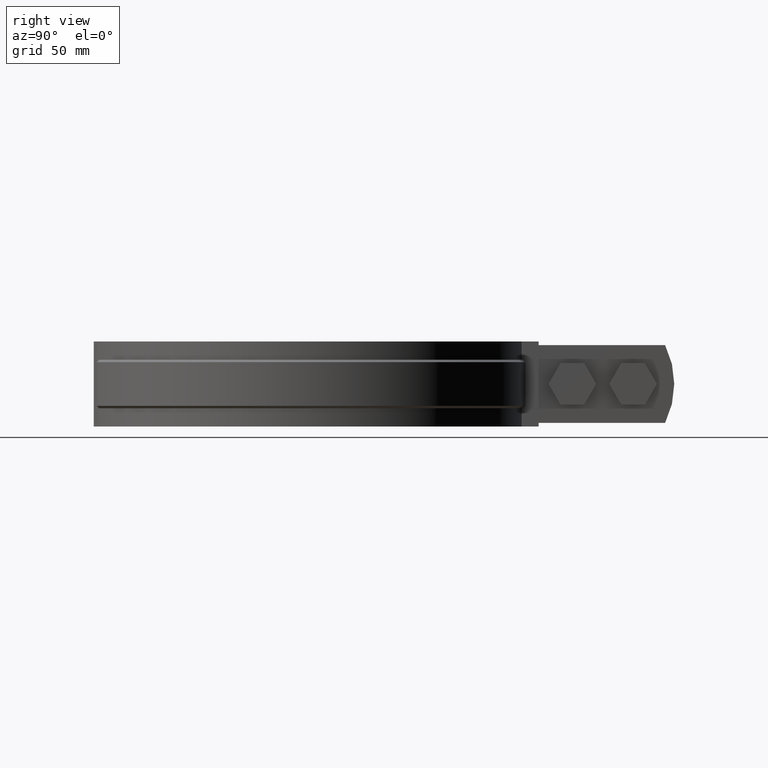
[diagram: clean part render]
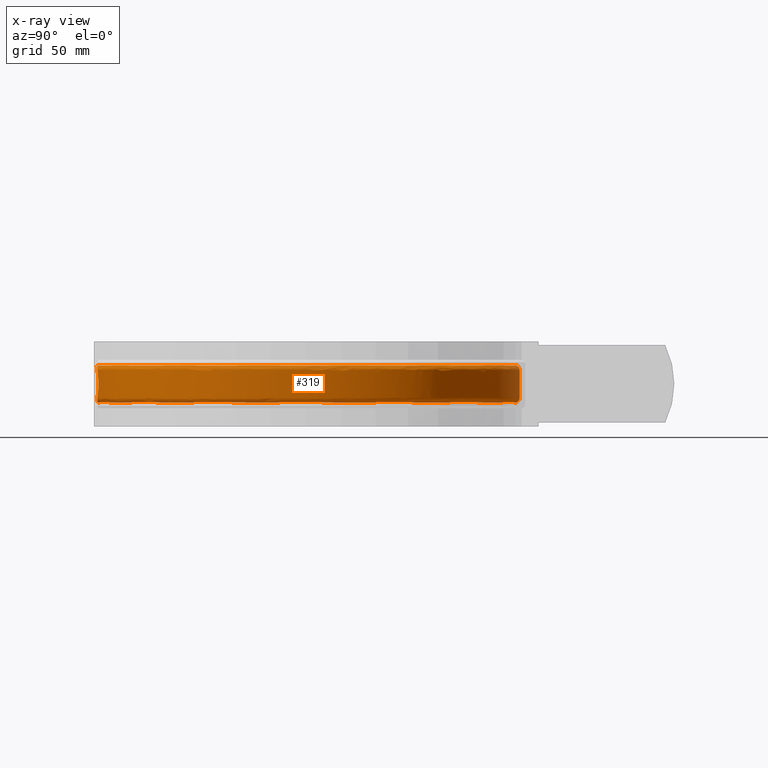
[diagram: x-ray — body ghosted, one internal face saturated and labeled with its STEP entity id]
A machine part, right view, then the same camera in x-ray: the body is ghosted and one INTERNAL B-rep face — a face not visible from any outside direction — is saturated and labeled: STEP entity #319.
In plain terms, the highlighted face is a freeform B-spline surface patch.
Its self-contained STEP definition (entity closure, byte-faithful):
#319 = ADVANCED_FACE( '', ( #476, #477 ), #478, .F. );
#476 = FACE_OUTER_BOUND( '', #808, .T. );
#477 = FACE_BOUND( '', #809, .T. );
#478 = B_SPLINE_SURFACE_WITH_KNOTS( '', 3, 3, ( ( #810, #811, #812, #813, #814, #815, #816, #817, #818, #819, #820, #821, #822, #823, #824, #825, #826 ), ( #827, #828, #829, #830, #831, #832, #833, #834, #835, #836, #837, #838, #839, #840, #841, #842, #843 ), ( #844, #845, #846, #847, #848, #849, #850, #851, #852, #853, #854, #855, #856, #857, #858, #859, #860 ), ( #861, #862, #863, #864, #865, #866, #867, #868, #869, #870, #871, #872, #873, #874, #875, #876, #877 ), ( #878, #879, #880, #881, #882, #883, #884, #885, #886, #887, #888, #889, #890, #891, #892, #893, #894 ), ( #895, #896, #897, #898, #899, #900, #901, #902, #903, #904, #905, #906, #907, #908, #909, #910, #911 ), ( #912, #913, #914, #915, #916, #917, #918, #919, #920, #921, #922, #923, #924, #925, #926, #927, #928 ), ( #929, #930, #931, #932, #933, #934, #935, #936, #937, #938, #939, #940, #941, #942, #943, #944, #945 ), ( #946, #947, #948, #949, #950, #951, #952, #953, #954, #955, #956, #957, #958, #959, #960, #961, #962 ), ( #963, #964, #965, #966, #967, #968, #969, #970, #971, #972, #973, #974, #975, #976, #977, #978, #979 ), ( #980, #981, #982, #983, #984, #985, #986, #987, #988, #989, #990, #991, #992, #993, #994, #995, #996 ), ( #997, #998, #999, #1000, #1001, #1002, #1003, #1004, #1005, #1006, #1007, #1008, #1009, #1010, #1011, #1012, #1013 ), ( #1014, #1015, #1016, #1017, #1018, #1019, #1020, #1021, #1022, #1023, #1024, #1025, #1026, #1027, #1028, #1029, #1030 ), ( #1031, #1032, #1033, #1034, #1035, #1036, #1037, #1038, #1039, #1040, #1041, #1042, #1043, #1044, #1045, #1046, #1047 ), ( #1048, #1049, #1050, #1051, #1052, #1053, #1054, #1055, #1056, #1057, #1058, #1059, #1060, #1061, #1062, #1063, #1064 ), ( #1065, #1066, #1067, #1068, #1069, #1070, #1071, #1072, #1073, #1074, #1075, #1076, #1077, #1078, #1079, #1080, #1081 ), ( #1082, #1083, #1084, #1085, #1086, #1087, #1088, #1089, #1090, #1091, #1092, #1093, #1094, #1095, #1096, #1097, #1098 ), ( #1099, #1100, #1101, #1102, #1103, #1104, #1105, #1106, #1107, #1108, #1109, #1110, #1111, #1112, #1113, #1114, #1115 ), ( #1116, #1117, #1118, #1119, #1120, #1121, #1122, #1123, #1124, #1125, #1126, #1127, #1128, #1129, #1130, #1131, #1132 ), ( #1133, #1134, #1135, #1136, #1137, #1138, #1139, #1140, #1141, #1142, #1143, #1144, #1145, #1146, #1147, #1148, #1149 ), ( #1150, #1151, #1152, #1153, #1154, #1155, #1156, #1157, #1158, #1159, #1160, #1161, #1162, #1163, #1164, #1165, #1166 ), ( #1167, #1168, #1169, #1170, #1171, #1172, #1173, #1174, #1175, #1176, #1177, #1178, #1179, #1180, #1181, #1182, #1183 ) ), .UNSPECIFIED., .F., .F., .F., ( 4, 3, 1, 1, 1, 3, 3, 1, 1, 1, 3, 4 ), ( 4, 1, 1, 1, 1, 1, 1, 1, 1, 1, 1, 1, 1, 1, 4 ), ( 0.000000000000000, 0.0909090909090909, 0.181818181818182, 0.272727272727273, 0.363636363636364, 0.454545454545455, 0.545454545454545, 0.636363636363636, 0.727272727272727, 0.818181818181818, 0.909090909090909, 1.00000000000000 ), ( 2.94817470159169, 4.00000000000000, 5.00000000000000, 6.00000000000000, 7.00000000000000, 8.00000000000000, 9.00000000000000, 10.0000000000000, 11.0000000000000, 12.0000000000000, 13.0000000000000, 14.0000000000000, 15.0000000000000, 16.0000000000000, 17.0000000000000 ), .UNSPECIFIED. );
#808 = EDGE_LOOP( '', ( #2286, #2287, #2288, #2289, #2290, #2291, #2292, #2293, #2294, #2295, #2296, #2297 ) );
#809 = EDGE_LOOP( '', ( #2298, #2299, #2300, #2301, #2302, #2303, #2304, #2305, #2306, #2307 ) );
#810 = CARTESIAN_POINT( '', ( -4.57373842755548, 84.4836495014351, -25.5000000000000 ) );
#811 = CARTESIAN_POINT( '', ( -17.6140169030165, 83.7785484212474, -25.5000000000000 ) );
#812 = CARTESIAN_POINT( '', ( -42.7501224215282, 76.3907897944503, -25.5000000000000 ) );
#813 = CARTESIAN_POINT( '', ( -71.4956709775378, 50.2505123432270, -25.5000000000000 ) );
#814 = CARTESIAN_POINT( '', ( -86.1002312614292, 14.9572072467204, -25.5000000000000 ) );
#815 = CARTESIAN_POINT( '', ( -84.2552280888624, -23.1941572600242, -25.5000000000000 ) );
#816 = CARTESIAN_POINT( '', ( -66.3149285777702, -56.9144403506470, -25.5000000000000 ) );
#817 = CARTESIAN_POINT( '', ( -35.7060700331207, -79.7621372297763, -25.5000000000000 ) );
#818 = CARTESIAN_POINT( '', ( 1.72386383356951, -87.3724799998223, -25.5000000000000 ) );
#819 = CARTESIAN_POINT( '', ( 38.8244802352373, -78.2916402695728, -25.5000000000000 ) );
#820 = CARTESIAN_POINT( '', ( 68.5082946679775, -54.2543907568589, -25.5000000000000 ) );
#821 = CARTESIAN_POINT( '', ( 85.1045474199366, -19.8526038891576, -25.5000000000000 ) );
#822 = CARTESIAN_POINT( '', ( 85.4432300146408, 18.3414873582820, -25.5000000000000 ) );
#823 = CARTESIAN_POINT( '', ( 69.4579498746001, 53.0325875294891, -25.5000000000000 ) );
#824 = CARTESIAN_POINT( '', ( 40.2087681660690, 77.5893697278056, -25.5000000000000 ) );
#825 = CARTESIAN_POINT( '', ( 15.5760698412748, 84.0871317769174, -25.5000000000000 ) );
#826 = CARTESIAN_POINT( '', ( 3.16749899997406, 84.5477663442119, -25.5000000000000 ) );
#827 = CARTESIAN_POINT( '', ( -4.55503173385747, 85.2881737615936, -24.6952621458756 ) );
#828 = CARTESIAN_POINT( '', ( -17.7220381476268, 84.5859650730103, -24.6952621458756 ) );
#829 = CARTESIAN_POINT( '', ( -43.0987477430875, 77.1464507352005, -24.6952621458756 ) );
#830 = CARTESIAN_POINT( '', ( -72.1372249274320, 50.7793048320895, -24.6952621458756 ) );
#831 = CARTESIAN_POINT( '', ( -86.9057531623599, 15.1619661527957, -24.6952621458756 ) );
#832 = CARTESIAN_POINT( '', ( -85.0712176376558, -23.3525480085753, -24.6952621458756 ) );
#833 = CARTESIAN_POINT( '', ( -66.9854009723252, -57.4057226091606, -24.6952621458756 ) );
#834 = CARTESIAN_POINT( '', ( -36.1029690476388, -80.4924590207758, -24.6952621458757 ) );
#835 = CARTESIAN_POINT( '', ( 1.67636654314826, -88.2023244071327, -24.6952621458756 ) );
#836 = CARTESIAN_POINT( '', ( 39.1354582900263, -79.0624783820023, -24.6952621458756 ) );
#837 = CARTESIAN_POINT( '', ( 69.1183336662526, -54.8189648529472, -24.6952621458757 ) );
#838 = CARTESIAN_POINT( '', ( 85.8971358356805, -20.1030638184777, -24.6952621458756 ) );
#839 = CARTESIAN_POINT( '', ( 86.2668541452362, 18.4529998418757, -24.6952621458757 ) );
#840 = CARTESIAN_POINT( '', ( 70.1556487642159, 53.4847260329716, -24.6952621458756 ) );
#841 = CARTESIAN_POINT( '', ( 40.6458392590685, 78.2959229100007, -24.6952621458756 ) );
#842 = CARTESIAN_POINT( '', ( 15.7872527803084, 84.8729054578480, -24.6952621458757 ) );
#843 = CARTESIAN_POINT( '', ( 3.25931876250112, 85.3472487674522, -24.6952621458757 ) );
#844 = CARTESIAN_POINT( '', ( -4.53632504015947, 86.0926980217522, -23.8905242917513 ) );
#845 = CARTESIAN_POINT( '', ( -17.8300593922371, 85.3933817247733, -23.8905242917513 ) );
#846 = CARTESIAN_POINT( '', ( -43.4473730646468, 77.9021116759507, -23.8905242917513 ) );
#847 = CARTESIAN_POINT( '', ( -72.7787788773263, 51.3080973209521, -23.8905242917513 ) );
#848 = CARTESIAN_POINT( '', ( -87.7112750632906, 15.3667250588710, -23.8905242917513 ) );
#849 = CARTESIAN_POINT( '', ( -85.8872071864492, -23.5109387571263, -23.8905242917513 ) );
#850 = CARTESIAN_POINT( '', ( -67.6558733668801, -57.8970048676741, -23.8905242917513 ) );
#851 = CARTESIAN_POINT( '', ( -36.4998680621569, -81.2227808117754, -23.8905242917513 ) );
#852 = CARTESIAN_POINT( '', ( 1.62886925272701, -89.0321688144431, -23.8905242917513 ) );
#853 = CARTESIAN_POINT( '', ( 39.4464363448153, -79.8333164944318, -23.8905242917513 ) );
#854 = CARTESIAN_POINT( '', ( 69.7283726645276, -55.3835389490356, -23.8905242917513 ) );
#855 = CARTESIAN_POINT( '', ( 86.6897242514245, -20.3535237477978, -23.8905242917513 ) );
#856 = CARTESIAN_POINT( '', ( 87.0904782758316, 18.5645123254694, -23.8905242917513 ) );
#857 = CARTESIAN_POINT( '', ( 70.8533476538316, 53.9368645364541, -23.8905242917513 ) );
#858 = CARTESIAN_POINT( '', ( 41.0829103520679, 79.0024760921958, -23.8905242917513 ) );
#859 = CARTESIAN_POINT( '', ( 15.9984357193421, 85.6586791387786, -23.8905242917513 ) );
#860 = CARTESIAN_POINT( '', ( 3.35113852502818, 86.1467311906925, -23.8905242917513 ) );
#861 = CARTESIAN_POINT( '', ( -4.51761834646146, 86.8972222819107, -23.0857864376269 ) );
#862 = CARTESIAN_POINT( '', ( -17.9380806368474, 86.2007983765362, -23.0857864376269 ) );
#863 = CARTESIAN_POINT( '', ( -43.7959983862061, 78.6577726167009, -23.0857864376269 ) );
#864 = CARTESIAN_POINT( '', ( -73.4203328272206, 51.8368898098147, -23.0857864376269 ) );
#865 = CARTESIAN_POINT( '', ( -88.5167969642214, 15.5714839649463, -23.0857864376269 ) );
#866 = CARTESIAN_POINT( '', ( -86.7031967352426, -23.6693295056774, -23.0857864376269 ) );
#867 = CARTESIAN_POINT( '', ( -68.3263457614351, -58.3882871261876, -23.0857864376269 ) );
#868 = CARTESIAN_POINT( '', ( -36.8967670766750, -81.9531026027749, -23.0857864376269 ) );
#869 = CARTESIAN_POINT( '', ( 1.58137196230576, -89.8620132217535, -23.0857864376269 ) );
#870 = CARTESIAN_POINT( '', ( 39.7574143996044, -80.6041546068613, -23.0857864376269 ) );
#871 = CARTESIAN_POINT( '', ( 70.3384116628027, -55.9481130451239, -23.0857864376269 ) );
#872 = CARTESIAN_POINT( '', ( 87.4823126671685, -20.6039836771179, -23.0857864376269 ) );
#873 = CARTESIAN_POINT( '', ( 87.9141024064269, 18.6760248090632, -23.0857864376269 ) );
#874 = CARTESIAN_POINT( '', ( 71.5510465434473, 54.3890030399366, -23.0857864376269 ) );
#875 = CARTESIAN_POINT( '', ( 41.5199814450674, 79.7090292743909, -23.0857864376269 ) );
#876 = CARTESIAN_POINT( '', ( 16.2096186583757, 86.4444528197092, -23.0857864376269 ) );
#877 = CARTESIAN_POINT( '', ( 3.44295828755524, 86.9462136139328, -23.0857864376269 ) );
#878 = CARTESIAN_POINT( '', ( -4.51546674101459, 86.9897570081558, -22.9932271442431 ) );
#879 = CARTESIAN_POINT( '', ( -17.9505050183032, 86.2936657797167, -22.9932271442431 ) );
#880 = CARTESIAN_POINT( '', ( -43.8360965538937, 78.7446871844140, -22.9932271442431 ) );
#881 = CARTESIAN_POINT( '', ( -73.4941230434574, 51.8977104346491, -22.9932271442431 ) );
#882 = CARTESIAN_POINT( '', ( -88.6094464370567, 15.5950349133244, -22.9932271442431 ) );
#883 = CARTESIAN_POINT( '', ( -86.7970501754129, -23.6875472839132, -22.9932271442431 ) );
#884 = CARTESIAN_POINT( '', ( -68.4034621177184, -58.4447934014510, -22.9932271442431 ) );
#885 = CARTESIAN_POINT( '', ( -36.9424175852726, -82.0371027135827, -22.9932271442431 ) );
#886 = CARTESIAN_POINT( '', ( 1.57590892161928, -89.9574602192639, -22.9932271442431 ) );
#887 = CARTESIAN_POINT( '', ( 39.7931824560734, -80.6928148216556, -22.9932271442431 ) );
#888 = CARTESIAN_POINT( '', ( 70.4085770941012, -56.0130491968520, -22.9932271442431 ) );
#889 = CARTESIAN_POINT( '', ( 87.5734745571299, -20.6327910632251, -22.9932271442431 ) );
#890 = CARTESIAN_POINT( '', ( 88.0088339604989, 18.6888507456486, -22.9932271442431 ) );
#891 = CARTESIAN_POINT( '', ( 71.6312944352130, 54.4410070809786, -22.9932271442431 ) );
#892 = CARTESIAN_POINT( '', ( 41.5702524635353, 79.7902955686840, -22.9932271442431 ) );
#893 = CARTESIAN_POINT( '', ( 16.2339084858164, 86.5348308928840, -22.9932271442431 ) );
#894 = CARTESIAN_POINT( '', ( 3.45351920785322, 87.0381684384618, -22.9932271442431 ) );
#895 = CARTESIAN_POINT( '', ( -4.51158735940072, 87.1565987105515, -22.7898759680773 ) );
#896 = CARTESIAN_POINT( '', ( -17.9729063916840, 86.4611073043467, -22.7898759680773 ) );
#897 = CARTESIAN_POINT( '', ( -43.9083942396537, 78.9013956443477, -22.7898759680773 ) );
#898 = CARTESIAN_POINT( '', ( -73.6271680720287, 52.0073710669320, -22.7898759680773 ) );
#899 = CARTESIAN_POINT( '', ( -88.7764950295278, 15.6374976781682, -22.7898759680773 ) );
#900 = CARTESIAN_POINT( '', ( -86.9662695416891, -23.7203942512959, -22.7898759680773 ) );
#901 = CARTESIAN_POINT( '', ( -68.5425042339808, -58.5466751872794, -22.7898759680773 ) );
#902 = CARTESIAN_POINT( '', ( -37.0247262371563, -82.1885563576071, -22.7898759680773 ) );
#903 = CARTESIAN_POINT( '', ( 1.56605896533393, -90.1295527968227, -22.7898759680773 ) );
#904 = CARTESIAN_POINT( '', ( 39.8576728768576, -80.8526707132901, -22.7898759680773 ) );
#905 = CARTESIAN_POINT( '', ( 70.5350865731068, -56.1301301948835, -22.7898759680773 ) );
#906 = CARTESIAN_POINT( '', ( 87.7378410121027, -20.6847312756700, -22.7898759680773 ) );
#907 = CARTESIAN_POINT( '', ( 88.1796365812373, 18.7119761298322, -22.7898759680773 ) );
#908 = CARTESIAN_POINT( '', ( 71.7759827637913, 54.5347712610977, -22.7898759680773 ) );
#909 = CARTESIAN_POINT( '', ( 41.6608919741569, 79.9368200945290, -22.7898759680773 ) );
#910 = CARTESIAN_POINT( '', ( 16.2777034623139, 86.6977841127140, -22.7898759680773 ) );
#911 = CARTESIAN_POINT( '', ( 3.47256072872739, 87.2039645680932, -22.7898759680773 ) );
#912 = CARTESIAN_POINT( '', ( -4.50726339850927, 87.3425605642765, -22.4418734431229 ) );
#913 = CARTESIAN_POINT( '', ( -17.9978749748383, 86.6477377202657, -22.4418734431229 ) );
#914 = CARTESIAN_POINT( '', ( -43.9889772801699, 79.0760629804225, -22.4418734431229 ) );
#915 = CARTESIAN_POINT( '', ( -73.7754601344252, 52.1295988682979, -22.4418734431229 ) );
#916 = CARTESIAN_POINT( '', ( -88.9626874830452, 15.6848266993378, -22.4418734431229 ) );
#917 = CARTESIAN_POINT( '', ( -87.1548815408897, -23.7570054992993, -22.4418734431229 ) );
#918 = CARTESIAN_POINT( '', ( -68.6974806536332, -58.6602326820868, -22.4418734431229 ) );
#919 = CARTESIAN_POINT( '', ( -37.1164675060484, -82.3573666729645, -22.4418734431230 ) );
#920 = CARTESIAN_POINT( '', ( 1.55508019861295, -90.3213672789073, -22.4418734431229 ) );
#921 = CARTESIAN_POINT( '', ( 39.9295539355158, -81.0308461784787, -22.4418734431229 ) );
#922 = CARTESIAN_POINT( '', ( 70.6760941083443, -56.2606287400150, -22.4418734431229 ) );
#923 = CARTESIAN_POINT( '', ( 87.9210439536817, -20.7426238651750, -22.4418734431229 ) );
#924 = CARTESIAN_POINT( '', ( 88.3700132767368, 18.7377516958275, -22.4418734431229 ) );
#925 = CARTESIAN_POINT( '', ( 71.9372524548125, 54.6392808680939, -22.4418734431229 ) );
#926 = CARTESIAN_POINT( '', ( 41.7619188228039, 80.1001364120387, -22.4418734431229 ) );
#927 = CARTESIAN_POINT( '', ( 16.3265173673291, 86.8794118616217, -22.4418734431230 ) );
#928 = CARTESIAN_POINT( '', ( 3.49378441842042, 87.3887610258371, -22.4418734431230 ) );
#929 = CARTESIAN_POINT( '', ( -4.50460071653933, 87.4570753083829, -22.0642686993349 ) );
#930 = CARTESIAN_POINT( '', ( -18.0132505524277, 86.7626641629383, -22.0642686993349 ) );
#931 = CARTESIAN_POINT( '', ( -44.0386000715069, 79.1836225949009, -22.0642686993349 ) );
#932 = CARTESIAN_POINT( '', ( -73.8667779355666, 52.2048663767452, -22.0642686993349 ) );
#933 = CARTESIAN_POINT( '', ( -89.0773442298026, 15.7139717666700, -22.0642686993349 ) );
#934 = CARTESIAN_POINT( '', ( -87.2710282365221, -23.7795505945032, -22.0642686993349 ) );
#935 = CARTESIAN_POINT( '', ( -68.7929146616490, -58.7301610421174, -22.0642686993349 ) );
#936 = CARTESIAN_POINT( '', ( -37.1729615004926, -82.4613195518935, -22.0642686993349 ) );
#937 = CARTESIAN_POINT( '', ( 1.54831950744714, -90.4394860537625, -22.0642686993349 ) );
#938 = CARTESIAN_POINT( '', ( 39.9738180728829, -81.1405660881989, -22.0642686993349 ) );
#939 = CARTESIAN_POINT( '', ( 70.7629261198098, -56.3409893473259, -22.0642686993349 ) );
#940 = CARTESIAN_POINT( '', ( 88.0338597680771, -20.7782739457697, -22.0642686993349 ) );
#941 = CARTESIAN_POINT( '', ( 88.4872466669846, 18.7536242109968, -22.0642686993349 ) );
#942 = CARTESIAN_POINT( '', ( 72.0365618402025, 54.7036375663204, -22.0642686993349 ) );
#943 = CARTESIAN_POINT( '', ( 41.8241308490282, 80.2007061037975, -22.0642686993349 ) );
#944 = CARTESIAN_POINT( '', ( 16.3565768216186, 86.9912576771594, -22.0642686993349 ) );
#945 = CARTESIAN_POINT( '', ( 3.50685390200271, 87.5025581226417, -22.0642686993349 ) );
#946 = CARTESIAN_POINT( '', ( -4.50400133142361, 87.4828532397778, -21.8024714832808 ) );
#947 = CARTESIAN_POINT( '', ( -18.0167116838946, 86.7885347700622, -21.8024714832808 ) );
#948 = CARTESIAN_POINT( '', ( -44.0497704489171, 79.2078348863794, -21.8024714832808 ) );
#949 = CARTESIAN_POINT( '', ( -73.8873341008999, 52.2218095283380, -21.8024714832809 ) );
#950 = CARTESIAN_POINT( '', ( -89.1031541268157, 15.7205324899380, -21.8024714832808 ) );
#951 = CARTESIAN_POINT( '', ( -87.2971735296468, -23.7846256258627, -21.8024714832808 ) );
#952 = CARTESIAN_POINT( '', ( -68.8143974089630, -58.7459023205134, -21.8024714832808 ) );
#953 = CARTESIAN_POINT( '', ( -37.1856786254739, -82.4847199463338, -21.8024714832809 ) );
#954 = CARTESIAN_POINT( '', ( 1.54679763675341, -90.4660752733292, -21.8024714832808 ) );
#955 = CARTESIAN_POINT( '', ( 39.9837821862834, -81.1652646746341, -21.8024714832808 ) );
#956 = CARTESIAN_POINT( '', ( 70.7824725079357, -56.3590789849378, -21.8024714832809 ) );
#957 = CARTESIAN_POINT( '', ( 88.0592552605653, -20.7862989851562, -21.8024714832809 ) );
#958 = CARTESIAN_POINT( '', ( 88.5136365813540, 18.7571972059878, -21.8024714832809 ) );
#959 = CARTESIAN_POINT( '', ( 72.0589169573835, 54.7181246314109, -21.8024714832808 ) );
#960 = CARTESIAN_POINT( '', ( 41.8381351360435, 80.2233449232333, -21.8024714832808 ) );
#961 = CARTESIAN_POINT( '', ( 16.3633433786807, 87.0164348172930, -21.8024714832809 ) );
#962 = CARTESIAN_POINT( '', ( 3.50979591836732, 87.5281745074772, -21.8024714832809 ) );
#963 = CARTESIAN_POINT( '', ( -4.50400133142361, 87.4828532397778, -21.6715728752538 ) );
#964 = CARTESIAN_POINT( '', ( -18.0167116838946, 86.7885347700622, -21.6715728752538 ) );
#965 = CARTESIAN_POINT( '', ( -44.0497704489171, 79.2078348863794, -21.6715728752538 ) );
#966 = CARTESIAN_POINT( '', ( -73.8873341008999, 52.2218095283380, -21.6715728752538 ) );
#967 = CARTESIAN_POINT( '', ( -89.1031541268157, 15.7205324899380, -21.6715728752538 ) );
#968 = CARTESIAN_POINT( '', ( -87.2971735296468, -23.7846256258627, -21.6715728752538 ) );
#969 = CARTESIAN_POINT( '', ( -68.8143974089630, -58.7459023205134, -21.6715728752538 ) );
#970 = CARTESIAN_POINT( '', ( -37.1856786254739, -82.4847199463338, -21.6715728752538 ) );
#971 = CARTESIAN_POINT( '', ( 1.54679763675341, -90.4660752733292, -21.6715728752538 ) );
#972 = CARTESIAN_POINT( '', ( 39.9837821862834, -81.1652646746341, -21.6715728752538 ) );
#973 = CARTESIAN_POINT( '', ( 70.7824725079357, -56.3590789849378, -21.6715728752538 ) );
#974 = CARTESIAN_POINT( '', ( 88.0592552605653, -20.7862989851562, -21.6715728752538 ) );
#975 = CARTESIAN_POINT( '', ( 88.5136365813540, 18.7571972059878, -21.6715728752538 ) );
#976 = CARTESIAN_POINT( '', ( 72.0589169573835, 54.7181246314109, -21.6715728752538 ) );
#977 = CARTESIAN_POINT( '', ( 41.8381351360435, 80.2233449232333, -21.6715728752538 ) );
#978 = CARTESIAN_POINT( '', ( 16.3633433786807, 87.0164348172930, -21.6715728752538 ) );
#979 = CARTESIAN_POINT( '', ( 3.50979591836732, 87.5281745074772, -21.6715728752538 ) );
#980 = CARTESIAN_POINT( '', ( -4.50400133142361, 87.4828532397778, -17.8905242917513 ) );
#981 = CARTESIAN_POINT( '', ( -18.0167116838946, 86.7885347700622, -17.8905242917513 ) );
#982 = CARTESIAN_POINT( '', ( -44.0497704489171, 79.2078348863794, -17.8905242917513 ) );
#983 = CARTESIAN_POINT( '', ( -73.8873341008999, 52.2218095283380, -17.8905242917513 ) );
#984 = CARTESIAN_POINT( '', ( -89.1031541268157, 15.7205324899380, -17.8905242917513 ) );
#985 = CARTESIAN_POINT( '', ( -87.2971735296468, -23.7846256258627, -17.8905242917513 ) );
#986 = CARTESIAN_POINT( '', ( -68.8143974089630, -58.7459023205134, -17.8905242917513 ) );
#987 = CARTESIAN_POINT( '', ( -37.1856786254739, -82.4847199463338, -17.8905242917513 ) );
#988 = CARTESIAN_POINT( '', ( 1.54679763675341, -90.4660752733292, -17.8905242917513 ) );
#989 = CARTESIAN_POINT( '', ( 39.9837821862834, -81.1652646746341, -17.8905242917513 ) );
#990 = CARTESIAN_POINT( '', ( 70.7824725079357, -56.3590789849378, -17.8905242917513 ) );
#991 = CARTESIAN_POINT( '', ( 88.0592552605653, -20.7862989851562, -17.8905242917513 ) );
#992 = CARTESIAN_POINT( '', ( 88.5136365813540, 18.7571972059878, -17.8905242917513 ) );
#993 = CARTESIAN_POINT( '', ( 72.0589169573834, 54.7181246314109, -17.8905242917513 ) );
#994 = CARTESIAN_POINT( '', ( 41.8381351360435, 80.2233449232333, -17.8905242917513 ) );
#995 = CARTESIAN_POINT( '', ( 16.3633433786807, 87.0164348172930, -17.8905242917513 ) );
#996 = CARTESIAN_POINT( '', ( 3.50979591836732, 87.5281745074772, -17.8905242917513 ) );
#997 = CARTESIAN_POINT( '', ( -4.50400133142361, 87.4828532397778, -14.1094757082487 ) );
#998 = CARTESIAN_POINT( '', ( -18.0167116838946, 86.7885347700622, -14.1094757082487 ) );
#999 = CARTESIAN_POINT( '', ( -44.0497704489171, 79.2078348863794, -14.1094757082487 ) );
#1000 = CARTESIAN_POINT( '', ( -73.8873341008999, 52.2218095283380, -14.1094757082487 ) );
#1001 = CARTESIAN_POINT( '', ( -89.1031541268157, 15.7205324899380, -14.1094757082487 ) );
#1002 = CARTESIAN_POINT( '', ( -87.2971735296468, -23.7846256258627, -14.1094757082487 ) );
#1003 = CARTESIAN_POINT( '', ( -68.8143974089630, -58.7459023205134, -14.1094757082487 ) );
#1004 = CARTESIAN_POINT( '', ( -37.1856786254739, -82.4847199463338, -14.1094757082488 ) );
#1005 = CARTESIAN_POINT( '', ( 1.54679763675341, -90.4660752733292, -14.1094757082487 ) );
#1006 = CARTESIAN_POINT( '', ( 39.9837821862834, -81.1652646746341, -14.1094757082487 ) );
#1007 = CARTESIAN_POINT( '', ( 70.7824725079357, -56.3590789849378, -14.1094757082488 ) );
#1008 = CARTESIAN_POINT( '', ( 88.0592552605653, -20.7862989851562, -14.1094757082487 ) );
#1009 = CARTESIAN_POINT( '', ( 88.5136365813540, 18.7571972059878, -14.1094757082488 ) );
#1010 = CARTESIAN_POINT( '', ( 72.0589169573834, 54.7181246314109, -14.1094757082487 ) );
#1011 = CARTESIAN_POINT( '', ( 41.8381351360435, 80.2233449232333, -14.1094757082487 ) );
#1012 = CARTESIAN_POINT( '', ( 16.3633433786807, 87.0164348172930, -14.1094757082488 ) );
#1013 = CARTESIAN_POINT( '', ( 3.50979591836732, 87.5281745074772, -14.1094757082488 ) );
#1014 = CARTESIAN_POINT( '', ( -4.50400133142361, 87.4828532397778, -10.3284271247462 ) );
#1015 = CARTESIAN_POINT( '', ( -18.0167116838946, 86.7885347700622, -10.3284271247462 ) );
#1016 = CARTESIAN_POINT( '', ( -44.0497704489171, 79.2078348863794, -10.3284271247462 ) );
#1017 = CARTESIAN_POINT( '', ( -73.8873341008999, 52.2218095283380, -10.3284271247462 ) );
#1018 = CARTESIAN_POINT( '', ( -89.1031541268157, 15.7205324899380, -10.3284271247462 ) );
#1019 = CARTESIAN_POINT( '', ( -87.2971735296468, -23.7846256258627, -10.3284271247462 ) );
#1020 = CARTESIAN_POINT( '', ( -68.8143974089630, -58.7459023205134, -10.3284271247462 ) );
#1021 = CARTESIAN_POINT( '', ( -37.1856786254739, -82.4847199463338, -10.3284271247462 ) );
#1022 = CARTESIAN_POINT( '', ( 1.54679763675341, -90.4660752733292, -10.3284271247462 ) );
#1023 = CARTESIAN_POINT( '', ( 39.9837821862834, -81.1652646746341, -10.3284271247462 ) );
#1024 = CARTESIAN_POINT( '', ( 70.7824725079357, -56.3590789849378, -10.3284271247462 ) );
#1025 = CARTESIAN_POINT( '', ( 88.0592552605653, -20.7862989851562, -10.3284271247462 ) );
#1026 = CARTESIAN_POINT( '', ( 88.5136365813540, 18.7571972059878, -10.3284271247462 ) );
#1027 = CARTESIAN_POINT( '', ( 72.0589169573834, 54.7181246314109, -10.3284271247462 ) );
#1028 = CARTESIAN_POINT( '', ( 41.8381351360435, 80.2233449232333, -10.3284271247462 ) );
#1029 = CARTESIAN_POINT( '', ( 16.3633433786807, 87.0164348172930, -10.3284271247462 ) );
#1030 = CARTESIAN_POINT( '', ( 3.50979591836732, 87.5281745074772, -10.3284271247462 ) );
#1031 = CARTESIAN_POINT( '', ( -4.50400133142361, 87.4828532397778, -10.1975285167192 ) );
#1032 = CARTESIAN_POINT( '', ( -18.0167116838946, 86.7885347700622, -10.1975285167192 ) );
#1033 = CARTESIAN_POINT( '', ( -44.0497704489171, 79.2078348863794, -10.1975285167192 ) );
#1034 = CARTESIAN_POINT( '', ( -73.8873341008999, 52.2218095283380, -10.1975285167192 ) );
#1035 = CARTESIAN_POINT( '', ( -89.1031541268157, 15.7205324899380, -10.1975285167192 ) );
#1036 = CARTESIAN_POINT( '', ( -87.2971735296468, -23.7846256258627, -10.1975285167192 ) );
#1037 = CARTESIAN_POINT( '', ( -68.8143974089630, -58.7459023205134, -10.1975285167192 ) );
#1038 = CARTESIAN_POINT( '', ( -37.1856786254739, -82.4847199463338, -10.1975285167192 ) );
#1039 = CARTESIAN_POINT( '', ( 1.54679763675341, -90.4660752733292, -10.1975285167192 ) );
#1040 = CARTESIAN_POINT( '', ( 39.9837821862834, -81.1652646746341, -10.1975285167192 ) );
#1041 = CARTESIAN_POINT( '', ( 70.7824725079357, -56.3590789849378, -10.1975285167192 ) );
#1042 = CARTESIAN_POINT( '', ( 88.0592552605653, -20.7862989851562, -10.1975285167192 ) );
#1043 = CARTESIAN_POINT( '', ( 88.5136365813540, 18.7571972059878, -10.1975285167192 ) );
#1044 = CARTESIAN_POINT( '', ( 72.0589169573834, 54.7181246314109, -10.1975285167192 ) );
#1045 = CARTESIAN_POINT( '', ( 41.8381351360435, 80.2233449232333, -10.1975285167192 ) );
#1046 = CARTESIAN_POINT( '', ( 16.3633433786807, 87.0164348172930, -10.1975285167192 ) );
#1047 = CARTESIAN_POINT( '', ( 3.50979591836732, 87.5281745074772, -10.1975285167192 ) );
#1048 = CARTESIAN_POINT( '', ( -4.50460071653933, 87.4570753083829, -9.93573130066511 ) );
#1049 = CARTESIAN_POINT( '', ( -18.0132505524277, 86.7626641629383, -9.93573130066511 ) );
#1050 = CARTESIAN_POINT( '', ( -44.0386000715068, 79.1836225949009, -9.93573130066511 ) );
#1051 = CARTESIAN_POINT( '', ( -73.8667779355666, 52.2048663767452, -9.93573130066511 ) );
#1052 = CARTESIAN_POINT( '', ( -89.0773442298026, 15.7139717666700, -9.93573130066510 ) );
#1053 = CARTESIAN_POINT( '', ( -87.2710282365221, -23.7795505945032, -9.93573130066511 ) );
#1054 = CARTESIAN_POINT( '', ( -68.7929146616490, -58.7301610421174, -9.93573130066510 ) );
#1055 = CARTESIAN_POINT( '', ( -37.1729615004926, -82.4613195518935, -9.93573130066511 ) );
#1056 = CARTESIAN_POINT( '', ( 1.54831950744713, -90.4394860537625, -9.93573130066511 ) );
#1057 = CARTESIAN_POINT( '', ( 39.9738180728829, -81.1405660881989, -9.93573130066510 ) );
#1058 = CARTESIAN_POINT( '', ( 70.7629261198098, -56.3409893473259, -9.93573130066511 ) );
#1059 = CARTESIAN_POINT( '', ( 88.0338597680771, -20.7782739457697, -9.93573130066511 ) );
#1060 = CARTESIAN_POINT( '', ( 88.4872466669846, 18.7536242109968, -9.93573130066511 ) );
#1061 = CARTESIAN_POINT( '', ( 72.0365618402025, 54.7036375663204, -9.93573130066511 ) );
#1062 = CARTESIAN_POINT( '', ( 41.8241308490282, 80.2007061037975, -9.93573130066511 ) );
#1063 = CARTESIAN_POINT( '', ( 16.3565768216186, 86.9912576771594, -9.93573130066511 ) );
#1064 = CARTESIAN_POINT( '', ( 3.50685390200271, 87.5025581226417, -9.93573130066511 ) );
#1065 = CARTESIAN_POINT( '', ( -4.50726339850927, 87.3425605642765, -9.55812655687708 ) );
#1066 = CARTESIAN_POINT( '', ( -17.9978749748383, 86.6477377202657, -9.55812655687708 ) );
#1067 = CARTESIAN_POINT( '', ( -43.9889772801699, 79.0760629804225, -9.55812655687709 ) );
#1068 = CARTESIAN_POINT( '', ( -73.7754601344252, 52.1295988682979, -9.55812655687709 ) );
#1069 = CARTESIAN_POINT( '', ( -88.9626874830452, 15.6848266993378, -9.55812655687708 ) );
#1070 = CARTESIAN_POINT( '', ( -87.1548815408897, -23.7570054992993, -9.55812655687708 ) );
#1071 = CARTESIAN_POINT( '', ( -68.6974806536332, -58.6602326820868, -9.55812655687708 ) );
#1072 = CARTESIAN_POINT( '', ( -37.1164675060484, -82.3573666729645, -9.55812655687709 ) );
#1073 = CARTESIAN_POINT( '', ( 1.55508019861295, -90.3213672789073, -9.55812655687709 ) );
#1074 = CARTESIAN_POINT( '', ( 39.9295539355158, -81.0308461784787, -9.55812655687708 ) );
#1075 = CARTESIAN_POINT( '', ( 70.6760941083443, -56.2606287400150, -9.55812655687709 ) );
#1076 = CARTESIAN_POINT( '', ( 87.9210439536817, -20.7426238651750, -9.55812655687709 ) );
#1077 = CARTESIAN_POINT( '', ( 88.3700132767368, 18.7377516958275, -9.55812655687709 ) );
#1078 = CARTESIAN_POINT( '', ( 71.9372524548125, 54.6392808680939, -9.55812655687709 ) );
#1079 = CARTESIAN_POINT( '', ( 41.7619188228039, 80.1001364120387, -9.55812655687709 ) );
#1080 = CARTESIAN_POINT( '', ( 16.3265173673291, 86.8794118616217, -9.55812655687709 ) );
#1081 = CARTESIAN_POINT( '', ( 3.49378441842042, 87.3887610258371, -9.55812655687709 ) );
#1082 = CARTESIAN_POINT( '', ( -4.51158735940072, 87.1565987105515, -9.21012403192274 ) );
#1083 = CARTESIAN_POINT( '', ( -17.9729063916840, 86.4611073043467, -9.21012403192274 ) );
#1084 = CARTESIAN_POINT( '', ( -43.9083942396537, 78.9013956443477, -9.21012403192274 ) );
#1085 = CARTESIAN_POINT( '', ( -73.6271680720287, 52.0073710669320, -9.21012403192274 ) );
#1086 = CARTESIAN_POINT( '', ( -88.7764950295278, 15.6374976781682, -9.21012403192274 ) );
#1087 = CARTESIAN_POINT( '', ( -86.9662695416891, -23.7203942512959, -9.21012403192274 ) );
#1088 = CARTESIAN_POINT( '', ( -68.5425042339808, -58.5466751872794, -9.21012403192274 ) );
#1089 = CARTESIAN_POINT( '', ( -37.0247262371563, -82.1885563576071, -9.21012403192275 ) );
#1090 = CARTESIAN_POINT( '', ( 1.56605896533393, -90.1295527968227, -9.21012403192274 ) );
#1091 = CARTESIAN_POINT( '', ( 39.8576728768576, -80.8526707132901, -9.21012403192274 ) );
#1092 = CARTESIAN_POINT( '', ( 70.5350865731068, -56.1301301948835, -9.21012403192275 ) );
#1093 = CARTESIAN_POINT( '', ( 87.7378410121027, -20.6847312756700, -9.21012403192274 ) );
#1094 = CARTESIAN_POINT( '', ( 88.1796365812373, 18.7119761298322, -9.21012403192275 ) );
#1095 = CARTESIAN_POINT( '', ( 71.7759827637913, 54.5347712610977, -9.21012403192274 ) );
#1096 = CARTESIAN_POINT( '', ( 41.6608919741569, 79.9368200945290, -9.21012403192274 ) );
#1097 = CARTESIAN_POINT( '', ( 16.2777034623139, 86.6977841127140, -9.21012403192275 ) );
#1098 = CARTESIAN_POINT( '', ( 3.47256072872739, 87.2039645680932, -9.21012403192275 ) );
#1099 = CARTESIAN_POINT( '', ( -4.51546674101459, 86.9897570081558, -9.00677285575691 ) );
#1100 = CARTESIAN_POINT( '', ( -17.9505050183032, 86.2936657797167, -9.00677285575691 ) );
#1101 = CARTESIAN_POINT( '', ( -43.8360965538937, 78.7446871844140, -9.00677285575691 ) );
#1102 = CARTESIAN_POINT( '', ( -73.4941230434574, 51.8977104346491, -9.00677285575692 ) );
#1103 = CARTESIAN_POINT( '', ( -88.6094464370567, 15.5950349133244, -9.00677285575691 ) );
#1104 = CARTESIAN_POINT( '', ( -86.7970501754129, -23.6875472839132, -9.00677285575691 ) );
#1105 = CARTESIAN_POINT( '', ( -68.4034621177184, -58.4447934014510, -9.00677285575691 ) );
#1106 = CARTESIAN_POINT( '', ( -36.9424175852726, -82.0371027135827, -9.00677285575692 ) );
#1107 = CARTESIAN_POINT( '', ( 1.57590892161928, -89.9574602192639, -9.00677285575691 ) );
#1108 = CARTESIAN_POINT( '', ( 39.7931824560734, -80.6928148216556, -9.00677285575691 ) );
#1109 = CARTESIAN_POINT( '', ( 70.4085770941012, -56.0130491968520, -9.00677285575692 ) );
#1110 = CARTESIAN_POINT( '', ( 87.5734745571299, -20.6327910632251, -9.00677285575692 ) );
#1111 = CARTESIAN_POINT( '', ( 88.0088339604989, 18.6888507456486, -9.00677285575692 ) );
#1112 = CARTESIAN_POINT( '', ( 71.6312944352129, 54.4410070809786, -9.00677285575691 ) );
#1113 = CARTESIAN_POINT( '', ( 41.5702524635353, 79.7902955686840, -9.00677285575691 ) );
#1114 = CARTESIAN_POINT( '', ( 16.2339084858164, 86.5348308928840, -9.00677285575692 ) );
#1115 = CARTESIAN_POINT( '', ( 3.45351920785322, 87.0381684384618, -9.00677285575692 ) );
#1116 = CARTESIAN_POINT( '', ( -4.51761834646146, 86.8972222819108, -8.91421356237312 ) );
#1117 = CARTESIAN_POINT( '', ( -17.9380806368474, 86.2007983765363, -8.91421356237312 ) );
#1118 = CARTESIAN_POINT( '', ( -43.7959983862061, 78.6577726167009, -8.91421356237312 ) );
#1119 = CARTESIAN_POINT( '', ( -73.4203328272206, 51.8368898098147, -8.91421356237312 ) );
#1120 = CARTESIAN_POINT( '', ( -88.5167969642214, 15.5714839649463, -8.91421356237312 ) );
#1121 = CARTESIAN_POINT( '', ( -86.7031967352426, -23.6693295056774, -8.91421356237312 ) );
#1122 = CARTESIAN_POINT( '', ( -68.3263457614351, -58.3882871261876, -8.91421356237312 ) );
#1123 = CARTESIAN_POINT( '', ( -36.8967670766750, -81.9531026027749, -8.91421356237313 ) );
#1124 = CARTESIAN_POINT( '', ( 1.58137196230576, -89.8620132217535, -8.91421356237312 ) );
#1125 = CARTESIAN_POINT( '', ( 39.7574143996044, -80.6041546068613, -8.91421356237312 ) );
#1126 = CARTESIAN_POINT( '', ( 70.3384116628027, -55.9481130451239, -8.91421356237312 ) );
#1127 = CARTESIAN_POINT( '', ( 87.4823126671685, -20.6039836771179, -8.91421356237312 ) );
#1128 = CARTESIAN_POINT( '', ( 87.9141024064269, 18.6760248090632, -8.91421356237312 ) );
#1129 = CARTESIAN_POINT( '', ( 71.5510465434473, 54.3890030399366, -8.91421356237312 ) );
#1130 = CARTESIAN_POINT( '', ( 41.5199814450674, 79.7090292743909, -8.91421356237312 ) );
#1131 = CARTESIAN_POINT( '', ( 16.2096186583757, 86.4444528197092, -8.91421356237312 ) );
#1132 = CARTESIAN_POINT( '', ( 3.44295828755524, 86.9462136139328, -8.91421356237312 ) );
#1133 = CARTESIAN_POINT( '', ( -4.53632504015947, 86.0926980217522, -8.10947570824875 ) );
#1134 = CARTESIAN_POINT( '', ( -17.8300593922371, 85.3933817247733, -8.10947570824875 ) );
#1135 = CARTESIAN_POINT( '', ( -43.4473730646468, 77.9021116759507, -8.10947570824875 ) );
#1136 = CARTESIAN_POINT( '', ( -72.7787788773263, 51.3080973209521, -8.10947570824875 ) );
#1137 = CARTESIAN_POINT( '', ( -87.7112750632906, 15.3667250588710, -8.10947570824874 ) );
#1138 = CARTESIAN_POINT( '', ( -85.8872071864492, -23.5109387571263, -8.10947570824875 ) );
#1139 = CARTESIAN_POINT( '', ( -67.6558733668801, -57.8970048676741, -8.10947570824874 ) );
#1140 = CARTESIAN_POINT( '', ( -36.4998680621569, -81.2227808117754, -8.10947570824875 ) );
#1141 = CARTESIAN_POINT( '', ( 1.62886925272701, -89.0321688144431, -8.10947570824875 ) );
#1142 = CARTESIAN_POINT( '', ( 39.4464363448153, -79.8333164944318, -8.10947570824874 ) );
#1143 = CARTESIAN_POINT( '', ( 69.7283726645276, -55.3835389490356, -8.10947570824875 ) );
#1144 = CARTESIAN_POINT( '', ( 86.6897242514246, -20.3535237477978, -8.10947570824875 ) );
#1145 = CARTESIAN_POINT( '', ( 87.0904782758316, 18.5645123254694, -8.10947570824875 ) );
#1146 = CARTESIAN_POINT( '', ( 70.8533476538316, 53.9368645364541, -8.10947570824875 ) );
#1147 = CARTESIAN_POINT( '', ( 41.0829103520679, 79.0024760921958, -8.10947570824874 ) );
#1148 = CARTESIAN_POINT( '', ( 15.9984357193421, 85.6586791387786, -8.10947570824875 ) );
#1149 = CARTESIAN_POINT( '', ( 3.35113852502818, 86.1467311906925, -8.10947570824875 ) );
#1150 = CARTESIAN_POINT( '', ( -4.55503173385747, 85.2881737615936, -7.30473785412438 ) );
#1151 = CARTESIAN_POINT( '', ( -17.7220381476268, 84.5859650730103, -7.30473785412438 ) );
#1152 = CARTESIAN_POINT( '', ( -43.0987477430875, 77.1464507352005, -7.30473785412438 ) );
#1153 = CARTESIAN_POINT( '', ( -72.1372249274321, 50.7793048320896, -7.30473785412438 ) );
#1154 = CARTESIAN_POINT( '', ( -86.9057531623599, 15.1619661527957, -7.30473785412438 ) );
#1155 = CARTESIAN_POINT( '', ( -85.0712176376558, -23.3525480085753, -7.30473785412438 ) );
#1156 = CARTESIAN_POINT( '', ( -66.9854009723251, -57.4057226091606, -7.30473785412437 ) );
#1157 = CARTESIAN_POINT( '', ( -36.1029690476388, -80.4924590207758, -7.30473785412438 ) );
#1158 = CARTESIAN_POINT( '', ( 1.67636654314826, -88.2023244071327, -7.30473785412438 ) );
#1159 = CARTESIAN_POINT( '', ( 39.1354582900263, -79.0624783820023, -7.30473785412438 ) );
#1160 = CARTESIAN_POINT( '', ( 69.1183336662525, -54.8189648529472, -7.30473785412438 ) );
#1161 = CARTESIAN_POINT( '', ( 85.8971358356805, -20.1030638184777, -7.30473785412438 ) );
#1162 = CARTESIAN_POINT( '', ( 86.2668541452362, 18.4529998418757, -7.30473785412438 ) );
#1163 = CARTESIAN_POINT( '', ( 70.1556487642159, 53.4847260329716, -7.30473785412438 ) );
#1164 = CARTESIAN_POINT( '', ( 40.6458392590685, 78.2959229100007, -7.30473785412438 ) );
#1165 = CARTESIAN_POINT( '', ( 15.7872527803084, 84.8729054578480, -7.30473785412438 ) );
#1166 = CARTESIAN_POINT( '', ( 3.25931876250112, 85.3472487674522, -7.30473785412438 ) );
#1167 = CARTESIAN_POINT( '', ( -4.57373842755548, 84.4836495014351, -6.50000000000001 ) );
#1168 = CARTESIAN_POINT( '', ( -17.6140169030165, 83.7785484212474, -6.50000000000001 ) );
#1169 = CARTESIAN_POINT( '', ( -42.7501224215282, 76.3907897944503, -6.50000000000001 ) );
#1170 = CARTESIAN_POINT( '', ( -71.4956709775378, 50.2505123432270, -6.50000000000001 ) );
#1171 = CARTESIAN_POINT( '', ( -86.1002312614292, 14.9572072467204, -6.50000000000001 ) );
#1172 = CARTESIAN_POINT( '', ( -84.2552280888624, -23.1941572600242, -6.50000000000001 ) );
#1173 = CARTESIAN_POINT( '', ( -66.3149285777702, -56.9144403506470, -6.50000000000001 ) );
#1174 = CARTESIAN_POINT( '', ( -35.7060700331207, -79.7621372297763, -6.50000000000001 ) );
#1175 = CARTESIAN_POINT( '', ( 1.72386383356951, -87.3724799998223, -6.50000000000001 ) );
#1176 = CARTESIAN_POINT( '', ( 38.8244802352373, -78.2916402695729, -6.50000000000001 ) );
#1177 = CARTESIAN_POINT( '', ( 68.5082946679775, -54.2543907568589, -6.50000000000001 ) );
#1178 = CARTESIAN_POINT( '', ( 85.1045474199365, -19.8526038891576, -6.50000000000001 ) );
#1179 = CARTESIAN_POINT( '', ( 85.4432300146408, 18.3414873582820, -6.50000000000001 ) );
#1180 = CARTESIAN_POINT( '', ( 69.4579498746001, 53.0325875294891, -6.50000000000001 ) );
#1181 = CARTESIAN_POINT( '', ( 40.2087681660690, 77.5893697278056, -6.50000000000001 ) );
#1182 = CARTESIAN_POINT( '', ( 15.5760698412748, 84.0871317769174, -6.50000000000001 ) );
#1183 = CARTESIAN_POINT( '', ( 3.16749899997407, 84.5477663442119, -6.50000000000001 ) );
#2286 = ORIENTED_EDGE( '', *, *, #4640, .T. );
#2287 = ORIENTED_EDGE( '', *, *, #4641, .T. );
#2288 = ORIENTED_EDGE( '', *, *, #4642, .T. );
#2289 = ORIENTED_EDGE( '', *, *, #4643, .T. );
#2290 = ORIENTED_EDGE( '', *, *, #4644, .T. );
#2291 = ORIENTED_EDGE( '', *, *, #4645, .T. );
#2292 = ORIENTED_EDGE( '', *, *, #4646, .T. );
#2293 = ORIENTED_EDGE( '', *, *, #4647, .T. );
#2294 = ORIENTED_EDGE( '', *, *, #4648, .T. );
#2295 = ORIENTED_EDGE( '', *, *, #4649, .T. );
#2296 = ORIENTED_EDGE( '', *, *, #4650, .T. );
#2297 = ORIENTED_EDGE( '', *, *, #4651, .T. );
#2298 = ORIENTED_EDGE( '', *, *, #4652, .T. );
#2299 = ORIENTED_EDGE( '', *, *, #4653, .T. );
#2300 = ORIENTED_EDGE( '', *, *, #4654, .T. );
#2301 = ORIENTED_EDGE( '', *, *, #4655, .T. );
#2302 = ORIENTED_EDGE( '', *, *, #4656, .T. );
#2303 = ORIENTED_EDGE( '', *, *, #4657, .T. );
#2304 = ORIENTED_EDGE( '', *, *, #4658, .T. );
#2305 = ORIENTED_EDGE( '', *, *, #4659, .T. );
#2306 = ORIENTED_EDGE( '', *, *, #4660, .T. );
#2307 = ORIENTED_EDGE( '', *, *, #4661, .T. );
#4640 = EDGE_CURVE( '', #5068, #5069, #5070, .T. );
#4641 = EDGE_CURVE( '', #5069, #5071, #5072, .T. );
#4642 = EDGE_CURVE( '', #5071, #5073, #5074, .T. );
#4643 = EDGE_CURVE( '', #5073, #5075, #5076, .T. );
#4644 = EDGE_CURVE( '', #5075, #5077, #5078, .T. );
#4645 = EDGE_CURVE( '', #5077, #5079, #5080, .T. );
#4646 = EDGE_CURVE( '', #5079, #5081, #5082, .T. );
#4647 = EDGE_CURVE( '', #5081, #5083, #5084, .T. );
#4648 = EDGE_CURVE( '', #5083, #5085, #5086, .T. );
#4649 = EDGE_CURVE( '', #5085, #5087, #5088, .T. );
#4650 = EDGE_CURVE( '', #5087, #5089, #5090, .T. );
#4651 = EDGE_CURVE( '', #5089, #5068, #5091, .T. );
#4652 = EDGE_CURVE( '', #5092, #5093, #5094, .T. );
#4653 = EDGE_CURVE( '', #5093, #5095, #5096, .T. );
#4654 = EDGE_CURVE( '', #5095, #5097, #5098, .T. );
#4655 = EDGE_CURVE( '', #5097, #5099, #5100, .T. );
#4656 = EDGE_CURVE( '', #5099, #5101, #5102, .T. );
#4657 = EDGE_CURVE( '', #5101, #5103, #5104, .T. );
#4658 = EDGE_CURVE( '', #5103, #5105, #5106, .T. );
#4659 = EDGE_CURVE( '', #5105, #5107, #5108, .T. );
#4660 = EDGE_CURVE( '', #5107, #5109, #5110, .T. );
#4661 = EDGE_CURVE( '', #5109, #5092, #5111, .T. );
#5068 = VERTEX_POINT( '', #6012 );
#5069 = VERTEX_POINT( '', #6013 );
#5070 = B_SPLINE_CURVE_WITH_KNOTS( '', 3, ( #6014, #6015, #6016, #6017, #6018, #6019, #6020, #6021, #6022, #6023, #6024, #6025, #6026, #6027, #6028, #6029, #6030, #6031, #6032, #6033, #6034, #6035, #6036, #6037, #6038, #6039, #6040, #6041, #6042, #6043, #6044, #6045, #6046, #6047, #6048, #6049, #6050, #6051, #6052, #6053, #6054, #6055, #6056, #6057, #6058, #6059, #6060, #6061, #6062, #6063, #6064, #6065, #6066, #6067, #6068, #6069, #6070, #6071, #6072, #6073, #6074, #6075, #6076, #6077, #6078, #6079, #6080, #6081, #6082, #6083, #6084, #6085, #6086, #6087, #6088, #6089, #6090, #6091, #6092, #6093, #6094, #6095, #6096, #6097, #6098, #6099, #6100, #6101, #6102, #6103, #6104, #6105, #6106, #6107, #6108, #6109, #6110, #6111, #6112, #6113, #6114, #6115, #6116, #6117, #6118, #6119, #6120, #6121, #6122, #6123, #6124, #6125, #6126, #6127, #6128, #6129, #6130, #6131, #6132, #6133, #6134, #6135, #6136, #6137, #6138, #6139, #6140, #6141, #6142, #6143, #6144, #6145, #6146, #6147, #6148, #6149, #6150, #6151, #6152, #6153, #6154, #6155, #6156, #6157, #6158, #6159, #6160, #6161, #6162, #6163, #6164, #6165, #6166, #6167, #6168, #6169, #6170, #6171, #6172, #6173, #6174 ), .UNSPECIFIED., .F., .F., ( 4, 2, 2, 2, 2, 2, 2, 2, 2, 2, 2, 2, 2, 2, 2, 2, 1, 2, 2, 2, 2, 2, 2, 2, 2, 1, 2, 2, 2, 2, 2, 2, 2, 2, 1, 2, 2, 2, 2, 2, 2, 2, 2, 2, 2, 2, 2, 2, 2, 2, 2, 2, 2, 2, 2, 2, 2, 2, 2, 2, 2, 2, 2, 2, 2, 1, 2, 2, 2, 2, 2, 2, 2, 2, 2, 1, 2, 2, 2, 2, 2, 2, 4 ), ( 1.90819582357449E-017, 0.00826448369907384, 0.0165289673981477, 0.0206612092476846, 0.0247934510972215, 0.0330579347962953, 0.0495869021944429, 0.0578513858935167, 0.0619836277430537, 0.0661158695925906, 0.0743803532916644, 0.0785125951412013, 0.0826448369907383, 0.0991738043888859, 0.107438288087960, 0.111570529937497, 0.115702771787034, 0.119835013636571, 0.123967255486107, 0.132231739185181, 0.136363981034718, 0.140496222884255, 0.148760706583329, 0.165289673981477, 0.169421915831013, 0.173554157680550, 0.177686399530087, 0.181818641379624, 0.190083125078698, 0.194215366928235, 0.198347608777772, 0.214876576175920, 0.223141059874993, 0.227273301724530, 0.231405543574067, 0.235537785423604, 0.239670027273141, 0.247934510972215, 0.252066752821752, 0.256198994671289, 0.264463478370362, 0.268595720219899, 0.272727962069436, 0.280992445768510, 0.289256929467584, 0.293389171317121, 0.297521413166658, 0.305785896865731, 0.309918138715268, 0.314050380564805, 0.322314864263879, 0.326447106113416, 0.330579347962953, 0.338843831662027, 0.347108315361100, 0.355372799060174, 0.363637282759248, 0.367769524608785, 0.371901766458322, 0.380166250157396, 0.384298492006933, 0.388430733856470, 0.396695217555543, 0.413224184953691, 0.417356426803228, 0.421488668652765, 0.425620910502302, 0.429753152351839, 0.438017636050913, 0.442149877900450, 0.446282119749986, 0.454546603449060, 0.462811087148134, 0.471075570847208, 0.475207812696745, 0.479340054546282, 0.483472296395819, 0.487604538245356, 0.495869021944430, 0.500001263793966, 0.504133505643503, 0.512397989342577, 0.528926956740725 ), .UNSPECIFIED. );
#5071 = VERTEX_POINT( '', #6175 );
#5072 = B_SPLINE_CURVE_WITH_KNOTS( '', 3, ( #6176, #6177, #6178, #6179, #6180, #6181, #6182, #6183 ), .UNSPECIFIED., .F., .F., ( 4, 2, 2, 4 ), ( 2.11038219202008E-017, 0.000425082635984431, 0.000850165271968840, 0.00170033054393766 ), .UNSPECIFIED. );
#5073 = VERTEX_POINT( '', #6184 );
#5074 = B_SPLINE_CURVE_WITH_KNOTS( '', 3, ( #6185, #6186, #6187, #6188, #6189, #6190, #6191, #6192, #6193, #6194 ), .UNSPECIFIED., .F., .F., ( 4, 2, 2, 2, 4 ), ( 0.000000000000000, 0.000422458830225531, 0.000844917660451063, 0.00126737649067659, 0.00168983532090213 ), .UNSPECIFIED. );
#5075 = VERTEX_POINT( '', #6195 );
#5076 = B_SPLINE_CURVE_WITH_KNOTS( '', 3, ( #6196, #6197, #6198, #6199 ), .UNSPECIFIED., .F., .F., ( 4, 4 ), ( 0.000000000000000, 0.0113431433746051 ), .UNSPECIFIED. );
#5077 = VERTEX_POINT( '', #6200 );
#5078 = B_SPLINE_CURVE_WITH_KNOTS( '', 3, ( #6201, #6202, #6203, #6204, #6205, #6206, #6207, #6208, #6209, #6210 ), .UNSPECIFIED., .F., .F., ( 4, 2, 2, 2, 4 ), ( 0.000000000000000, 0.000423070935340055, 0.000846141870680109, 0.00126921280602016, 0.00169228374136022 ), .UNSPECIFIED. );
#5079 = VERTEX_POINT( '', #6211 );
#5080 = B_SPLINE_CURVE_WITH_KNOTS( '', 3, ( #6212, #6213, #6214, #6215, #6216, #6217, #6218, #6219, #6220, #6221 ), .UNSPECIFIED., .F., .F., ( 4, 2, 2, 2, 4 ), ( 0.000000000000000, 0.000425510897524681, 0.000851021795049361, 0.00127653269257404, 0.00170204359009872 ), .UNSPECIFIED. );
#5081 = VERTEX_POINT( '', #6222 );
#5082 = B_SPLINE_CURVE_WITH_KNOTS( '', 3, ( #6223, #6224, #6225, #6226, #6227, #6228, #6229, #6230, #6231, #6232, #6233, #6234, #6235, #6236, #6237, #6238, #6239, #6240, #6241, #6242, #6243, #6244, #6245, #6246, #6247, #6248, #6249, #6250, #6251, #6252, #6253, #6254, #6255, #6256, #6257, #6258, #6259, #6260, #6261, #6262, #6263, #6264, #6265, #6266, #6267, #6268, #6269, #6270, #6271, #6272, #6273, #6274, #6275, #6276, #6277, #6278, #6279, #6280, #6281, #6282, #6283, #6284, #6285, #6286, #6287, #6288, #6289, #6290, #6291, #6292, #6293, #6294, #6295, #6296, #6297, #6298, #6299, #6300, #6301, #6302, #6303, #6304, #6305, #6306, #6307, #6308, #6309, #6310, #6311, #6312, #6313, #6314, #6315, #6316, #6317, #6318, #6319, #6320, #6321, #6322, #6323, #6324, #6325, #6326, #6327, #6328, #6329, #6330, #6331, #6332, #6333, #6334, #6335, #6336, #6337, #6338, #6339, #6340, #6341, #6342, #6343, #6344, #6345, #6346, #6347, #6348, #6349, #6350, #6351, #6352, #6353, #6354, #6355, #6356, #6357, #6358, #6359, #6360, #6361, #6362, #6363, #6364, #6365, #6366, #6367, #6368, #6369, #6370, #6371, #6372, #6373, #6374, #6375, #6376 ), .UNSPECIFIED., .F., .F., ( 4, 2, 2, 2, 2, 2, 2, 2, 2, 2, 2, 2, 2, 2, 2, 2, 2, 2, 2, 2, 2, 2, 2, 2, 2, 1, 2, 2, 2, 2, 2, 2, 2, 2, 2, 2, 2, 2, 2, 2, 2, 2, 2, 2, 2, 2, 2, 2, 2, 2, 2, 2, 2, 2, 2, 2, 2, 2, 2, 2, 2, 2, 2, 2, 2, 2, 2, 2, 2, 2, 1, 2, 2, 2, 2, 2, 2, 4 ), ( 1.73472347597681E-018, 0.00826447819832100, 0.0165289563966420, 0.0206611954958025, 0.0247934345949630, 0.0330579127932840, 0.0495868691899260, 0.0578513473882470, 0.0619835864874075, 0.0661158255865679, 0.0743803037848889, 0.0826447819832098, 0.0909092601815307, 0.0950414992806911, 0.0991737383798516, 0.107438216578173, 0.115702694776493, 0.119834933875654, 0.123967172974814, 0.132231651173135, 0.136363890272296, 0.140496129371456, 0.148760607569777, 0.165289563966419, 0.169421803065579, 0.173554042164740, 0.177686281263900, 0.181818520363061, 0.190082998561382, 0.194215237660542, 0.198347476759703, 0.214876433156345, 0.223140911354666, 0.227273150453826, 0.231405389552986, 0.235537628652147, 0.239669867751307, 0.247934345949628, 0.252066585048789, 0.256198824147949, 0.264463302346270, 0.280992258742912, 0.285124497842072, 0.289256736941233, 0.297521215139554, 0.305785693337875, 0.309917932437035, 0.314050171536196, 0.330579127932837, 0.338843606131158, 0.342975845230319, 0.347108084329479, 0.355372562527800, 0.363637040726121, 0.367769279825282, 0.371901518924442, 0.380165997122763, 0.396694953519405, 0.400827192618566, 0.404959431717726, 0.413223909916047, 0.421488388114368, 0.425620627213528, 0.429752866312689, 0.446281822709331, 0.454546300907652, 0.458678540006812, 0.462810779105973, 0.471075257304294, 0.475207496403454, 0.479339735502615, 0.483471974601775, 0.487604213700936, 0.495868691899257, 0.500000930998417, 0.504133170097578, 0.512397648295899, 0.528926604692541 ), .UNSPECIFIED. );
#5083 = VERTEX_POINT( '', #6377 );
#5084 = B_SPLINE_CURVE_WITH_KNOTS( '', 3, ( #6378, #6379, #6380, #6381, #6382, #6383, #6384, #6385 ), .UNSPECIFIED., .F., .F., ( 4, 2, 2, 4 ), ( 2.28167249642050E-017, 0.000425109010252686, 0.000850218020505348, 0.00170043604101065 ), .UNSPECIFIED. );
#5085 = VERTEX_POINT( '', #6386 );
#5086 = B_SPLINE_CURVE_WITH_KNOTS( '', 3, ( #6387, #6388, #6389, #6390, #6391, #6392, #6393, #6394, #6395, #6396 ), .UNSPECIFIED., .F., .F., ( 4, 2, 2, 2, 4 ), ( 5.55382496713543E-018, 0.000422459853439393, 0.000844919706878781, 0.00126737956031817, 0.00168983941375756 ), .UNSPECIFIED. );
#5087 = VERTEX_POINT( '', #6397 );
#5088 = B_SPLINE_CURVE_WITH_KNOTS( '', 3, ( #6398, #6399, #6400, #6401 ), .UNSPECIFIED., .F., .F., ( 4, 4 ), ( 0.000000000000000, 0.0113431433919126 ), .UNSPECIFIED. );
#5089 = VERTEX_POINT( '', #6402 );
#5090 = B_SPLINE_CURVE_WITH_KNOTS( '', 3, ( #6403, #6404, #6405, #6406, #6407, #6408, #6409, #6410, #6411, #6412 ), .UNSPECIFIED., .F., .F., ( 4, 2, 2, 2, 4 ), ( 0.000000000000000, 0.000423078279073146, 0.000846156558146292, 0.00126923483721944, 0.00169231311629258 ), .UNSPECIFIED. );
#5091 = B_SPLINE_CURVE_WITH_KNOTS( '', 3, ( #6413, #6414, #6415, #6416, #6417, #6418, #6419, #6420, #6421, #6422 ), .UNSPECIFIED., .F., .F., ( 4, 2, 2, 2, 4 ), ( 1.08680114266881E-017, 0.000425530624434830, 0.000851061248869649, 0.00127659187330447, 0.00170212249773929 ), .UNSPECIFIED. );
#5092 = VERTEX_POINT( '', #6423 );
#5093 = VERTEX_POINT( '', #6424 );
#5094 = B_SPLINE_CURVE_WITH_KNOTS( '', 3, ( #6425, #6426, #6427, #6428, #6429 ), .UNSPECIFIED., .F., .F., ( 4, 1, 4 ), ( 0.263475423991989, 0.269976978847266, 0.279539060490091 ), .UNSPECIFIED. );
#5095 = VERTEX_POINT( '', #6430 );
#5096 = B_SPLINE_CURVE_WITH_KNOTS( '', 3, ( #6431, #6432, #6433, #6434, #6435, #6436, #6437, #6438, #6439, #6440 ), .UNSPECIFIED., .F., .F., ( 4, 2, 2, 2, 4 ), ( 5.20417042793042E-018, 0.00109283899903069, 0.00218567799806138, 0.00327851699709206, 0.00437135599612275 ), .UNSPECIFIED. );
#5097 = VERTEX_POINT( '', #6441 );
#5098 = B_SPLINE_CURVE_WITH_KNOTS( '', 3, ( #6442, #6443, #6444, #6445, #6446, #6447, #6448, #6449, #6450, #6451, #6452, #6453, #6454, #6455 ), .UNSPECIFIED., .F., .F., ( 4, 2, 2, 2, 2, 2, 4 ), ( 8.67361737988404E-018, 0.00165354427204719, 0.00248031640807079, 0.00330708854409438, 0.00413386068011798, 0.00496063281614157, 0.00661417708818877 ), .UNSPECIFIED. );
#5099 = VERTEX_POINT( '', #6456 );
#5100 = B_SPLINE_CURVE_WITH_KNOTS( '', 3, ( #6457, #6458, #6459, #6460, #6461, #6462, #6463, #6464, #6465, #6466, #6467, #6468, #6469 ), .UNSPECIFIED., .F., .F., ( 4, 2, 2, 1, 2, 2, 4 ), ( 0.000000000000000, 0.00165374119955009, 0.00248061179932514, 0.00330748239910018, 0.00413435299887523, 0.00496122359865028, 0.00661496479820037 ), .UNSPECIFIED. );
#5101 = VERTEX_POINT( '', #6470 );
#5102 = B_SPLINE_CURVE_WITH_KNOTS( '', 3, ( #6471, #6472, #6473, #6474, #6475, #6476, #6477, #6478, #6479, #6480 ), .UNSPECIFIED., .F., .F., ( 4, 2, 2, 2, 4 ), ( 6.25463444138550E-018, 0.00109219642641116, 0.00218439285282231, 0.00327658927923346, 0.00436878570564461 ), .UNSPECIFIED. );
#5103 = VERTEX_POINT( '', #6481 );
#5104 = B_SPLINE_CURVE_WITH_KNOTS( '', 3, ( #6482, #6483, #6484, #6485, #6486 ), .UNSPECIFIED., .F., .F., ( 4, 1, 4 ), ( 0.261401492016113, 0.270943024012810, 0.277430606528533 ), .UNSPECIFIED. );
#5105 = VERTEX_POINT( '', #6487 );
#5106 = B_SPLINE_CURVE_WITH_KNOTS( '', 3, ( #6488, #6489, #6490, #6491, #6492, #6493, #6494, #6495, #6496, #6497 ), .UNSPECIFIED., .F., .F., ( 4, 2, 2, 2, 4 ), ( 5.20417042793042E-018, 0.00109284045426298, 0.00218568090852596, 0.00327852136278894, 0.00437136181705192 ), .UNSPECIFIED. );
#5107 = VERTEX_POINT( '', #6498 );
#5108 = B_SPLINE_CURVE_WITH_KNOTS( '', 3, ( #6499, #6500, #6501, #6502, #6503, #6504, #6505, #6506, #6507, #6508, #6509, #6510, #6511, #6512 ), .UNSPECIFIED., .F., .F., ( 4, 2, 2, 2, 2, 2, 4 ), ( 0.000000000000000, 0.00165355823124353, 0.00248033734686530, 0.00330711646248706, 0.00413389557810883, 0.00496067469373060, 0.00661423292497414 ), .UNSPECIFIED. );
#5109 = VERTEX_POINT( '', #6513 );
#5110 = B_SPLINE_CURVE_WITH_KNOTS( '', 3, ( #6514, #6515, #6516, #6517, #6518, #6519, #6520, #6521, #6522, #6523, #6524, #6525, #6526 ), .UNSPECIFIED., .F., .F., ( 4, 2, 2, 1, 2, 2, 4 ), ( 0.000000000000000, 0.00165375213426262, 0.00248062820139394, 0.00330750426852526, 0.00413438033565658, 0.00496125640278790, 0.00661500853705054 ), .UNSPECIFIED. );
#5111 = B_SPLINE_CURVE_WITH_KNOTS( '', 3, ( #6527, #6528, #6529, #6530, #6531, #6532, #6533, #6534, #6535, #6536 ), .UNSPECIFIED., .F., .F., ( 4, 2, 2, 2, 4 ), ( 0.000000000000000, 0.00109219603105296, 0.00218439206210592, 0.00327658809315887, 0.00436878412421183 ), .UNSPECIFIED. );
#6012 = CARTESIAN_POINT( '', ( 8.74719101123594, 86.0565898081777, -8.39927649819153 ) );
#6013 = CARTESIAN_POINT( '', ( -8.74719101123595, 86.0565898081777, -8.39947804512454 ) );
#6014 = CARTESIAN_POINT( '', ( 8.74719101123592, 86.0565898081777, -8.39927649819152 ) );
#6015 = CARTESIAN_POINT( '', ( 11.4886317639096, 85.7779370523216, -8.40064659690478 ) );
#6016 = CARTESIAN_POINT( '', ( 14.2172008671952, 85.3678115999886, -8.40281689707827 ) );
#6017 = CARTESIAN_POINT( '', ( 19.6037795176148, 84.2940323302549, -8.40555996524240 ) );
#6018 = CARTESIAN_POINT( '', ( 22.2659294016766, 83.6302916274579, -8.40613678112623 ) );
#6019 = CARTESIAN_POINT( '', ( 26.2123965292207, 82.4442059252706, -8.40535111985650 ) );
#6020 = CARTESIAN_POINT( '', ( 27.5217081549266, 82.0164627896633, -8.40483282297901 ) );
#6021 = CARTESIAN_POINT( '', ( 30.1173046819340, 81.0992758721600, -8.40345193123191 ) );
#6022 = CARTESIAN_POINT( '', ( 31.3990770199254, 80.6115220248874, -8.40259306460607 ) );
#6023 = CARTESIAN_POINT( '', ( 35.1972672572396, 79.0625098331120, -8.40000236328365 ) );
#6024 = CARTESIAN_POINT( '', ( 37.6666627231225, 77.9156906859025, -8.39819362344676 ) );
#6025 = CARTESIAN_POINT( '', ( 44.8902573690555, 74.1393561907219, -8.39887260230384 ) );
#6026 = CARTESIAN_POINT( '', ( 49.4615645778137, 71.1770563555982, -8.40596295715212 ) );
#6027 = CARTESIAN_POINT( '', ( 55.9361290938403, 66.0378065389861, -8.40791344020572 ) );
#6028 = CARTESIAN_POINT( '', ( 58.0043369001511, 64.2284108249635, -8.40737360199663 ) );
#6029 = CARTESIAN_POINT( '', ( 60.9723777877221, 61.3718552024698, -8.40519345166160 ) );
#6030 = CARTESIAN_POINT( '', ( 61.9393456037546, 60.3958555670092, -8.40425758896575 ) );
#6031 = CARTESIAN_POINT( '', ( 63.8282935341483, 58.3959831496225, -8.40226767019365 ) );
#6032 = CARTESIAN_POINT( '', ( 64.7510938398185, 57.3710520044048, -8.40121296146907 ) );
#6033 = CARTESIAN_POINT( '', ( 67.4380257930824, 54.2395586570538, -8.39856762294146 ) );
#6034 = CARTESIAN_POINT( '', ( 69.1249226802043, 52.0725053793200, -8.39792579058374 ) );
#6035 = CARTESIAN_POINT( '', ( 71.4991868860197, 48.7032233290972, -8.39986720450860 ) );
#6036 = CARTESIAN_POINT( '', ( 72.2647174683322, 47.5600494439394, -8.40081440498413 ) );
#6037 = CARTESIAN_POINT( '', ( 73.7425349409450, 45.2347900887287, -8.40278908733329 ) );
#6038 = CARTESIAN_POINT( '', ( 74.4507001706559, 44.0592206263785, -8.40380980656039 ) );
#6039 = CARTESIAN_POINT( '', ( 77.8409589828159, 38.1180003976132, -8.40816043898322 ) );
#6040 = CARTESIAN_POINT( '', ( 80.0753448381155, 33.1639122253157, -8.40772461461127 ) );
#6041 = CARTESIAN_POINT( '', ( 82.7206108765359, 25.4354971933051, -8.40217321829884 ) );
#6042 = CARTESIAN_POINT( '', ( 83.4838744253518, 22.8094863321840, -8.39980103867969 ) );
#6043 = CARTESIAN_POINT( '', ( 84.4450299203205, 18.7931346695455, -8.39833175202636 ) );
#6044 = CARTESIAN_POINT( '', ( 84.7334956067186, 17.4462897746509, -8.39829628345534 ) );
#6045 = CARTESIAN_POINT( '', ( 85.2449083127197, 14.7459794992025, -8.39918128091769 ) );
#6046 = CARTESIAN_POINT( '', ( 85.6915162817133, 12.0361020947041, -8.40083871557706 ) );
#6047 = CARTESIAN_POINT( '', ( 86.0088255073484, 9.30713577669998, -8.40292200502020 ) );
#6048 = CARTESIAN_POINT( '', ( 86.2611996429382, 6.56858262341213, -8.40480406234259 ) );
#6049 = CARTESIAN_POINT( '', ( 86.3549541131287, 5.19276416412975, -8.40564483589558 ) );
#6050 = CARTESIAN_POINT( '', ( 86.5371491396009, 1.06930677065983, -8.40745797600732 ) );
#6051 = CARTESIAN_POINT( '', ( 86.5273692983436, -1.67708048186624, -8.40764679676608 ) );
#6052 = CARTESIAN_POINT( '', ( 86.3167451616426, -5.79280276366285, -8.40626474567134 ) );
#6053 = CARTESIAN_POINT( '', ( 86.2138226094795, -7.16406600098750, -8.40554591771026 ) );
#6054 = CARTESIAN_POINT( '', ( 85.9420281589281, -9.90529386415680, -8.40380411315323 ) );
#6055 = CARTESIAN_POINT( '', ( 85.7736631183450, -11.2695448737783, -8.40278545167460 ) );
#6056 = CARTESIAN_POINT( '', ( 85.1743253926514, -15.3323187911179, -8.39985059370893 ) );
#6057 = CARTESIAN_POINT( '', ( 84.6488498508702, -18.0057827979766, -8.39804627344330 ) );
#6058 = CARTESIAN_POINT( '', ( 82.7029354382339, -25.9233186701014, -8.39934996025447 ) );
#6059 = CARTESIAN_POINT( '', ( 80.9163650136069, -31.0654689752278, -8.40620451751021 ) );
#6060 = CARTESIAN_POINT( '', ( 78.0488017524060, -37.3165715616770, -8.40743674856764 ) );
#6061 = CARTESIAN_POINT( '', ( 77.4441767956042, -38.5556556277313, -8.40740233883152 ) );
#6062 = CARTESIAN_POINT( '', ( 76.1801265786794, -40.9966756565626, -8.40678281733419 ) );
#6063 = CARTESIAN_POINT( '', ( 74.8593004170699, -43.4049374533455, -8.40561395860604 ) );
#6064 = CARTESIAN_POINT( '', ( 73.4252737443599, -45.7478857020341, -8.40368646961666 ) );
#6065 = CARTESIAN_POINT( '', ( 71.9344363453840, -48.0580559148252, -8.40170358406076 ) );
#6066 = CARTESIAN_POINT( '', ( 71.1595391393892, -49.1982125794292, -8.40068341734885 ) );
#6067 = CARTESIAN_POINT( '', ( 68.7577727990035, -52.5565905085601, -8.39826786390764 ) );
#6068 = CARTESIAN_POINT( '', ( 67.0552209356641, -54.7119130466233, -8.39809548003307 ) );
#6069 = CARTESIAN_POINT( '', ( 64.3502472660413, -57.8202576765908, -8.40032253930875 ) );
#6070 = CARTESIAN_POINT( '', ( 63.4233555070197, -58.8355640217611, -8.40131366303733 ) );
#6071 = CARTESIAN_POINT( '', ( 61.5187387356270, -60.8242583342059, -8.40330079238695 ) );
#6072 = CARTESIAN_POINT( '', ( 60.5430060708989, -61.7953937328378, -8.40429351862171 ) );
#6073 = CARTESIAN_POINT( '', ( 55.5755388196168, -66.5103737477608, -8.40837335158039 ) );
#6074 = CARTESIAN_POINT( '', ( 51.2952738298715, -69.8617492488129, -8.40733153434220 ) );
#6075 = CARTESIAN_POINT( '', ( 44.4246189259790, -74.2705056844770, -8.40160900698519 ) );
#6076 = CARTESIAN_POINT( '', ( 42.0588601695305, -75.6363568517904, -8.39930244133328 ) );
#6077 = CARTESIAN_POINT( '', ( 38.3934174815236, -77.5247350413551, -8.39825411878138 ) );
#6078 = CARTESIAN_POINT( '', ( 37.1523027180062, -78.1271168578577, -8.39843216743219 ) );
#6079 = CARTESIAN_POINT( '', ( 34.6507754092287, -79.2683022986547, -8.39957187849196 ) );
#6080 = CARTESIAN_POINT( '', ( 32.1250644151578, -80.3485139512378, -8.40137862844966 ) );
#6081 = CARTESIAN_POINT( '', ( 29.5511689672213, -81.3072407852003, -8.40344633860929 ) );
#6082 = CARTESIAN_POINT( '', ( 26.9531084174522, -82.2050420477289, -8.40525584283237 ) );
#6083 = CARTESIAN_POINT( '', ( 25.6405254668000, -82.6239003486310, -8.40603189929583 ) );
#6084 = CARTESIAN_POINT( '', ( 21.6768563643604, -83.7851163291869, -8.40760877077840 ) );
#6085 = CARTESIAN_POINT( '', ( 19.0068194594140, -84.4306526552832, -8.40757883692344 ) );
#6086 = CARTESIAN_POINT( '', ( 14.9606847271455, -85.2074761152736, -8.40594426705851 ) );
#6087 = CARTESIAN_POINT( '', ( 13.6051148982283, -85.4344492968320, -8.40515389652983 ) );
#6088 = CARTESIAN_POINT( '', ( 10.8801690909357, -85.8240420779609, -8.40332161492098 ) );
#6089 = CARTESIAN_POINT( '', ( 9.51128911599274, -85.9864823128547, -8.40228020399695 ) );
#6090 = CARTESIAN_POINT( '', ( 5.40554481968160, -86.3747019094707, -8.39939070748710 ) );
#6091 = CARTESIAN_POINT( '', ( 2.66248223008241, -86.5027050302104, -8.39787986851435 ) );
#6092 = CARTESIAN_POINT( '', ( -1.46095791576187, -86.4985826430737, -8.39903469871150 ) );
#6093 = CARTESIAN_POINT( '', ( -2.83938755432971, -86.4643249883128, -8.39983268258316 ) );
#6094 = CARTESIAN_POINT( '', ( -5.58684443851182, -86.3303468462170, -8.40167527639142 ) );
#6095 = CARTESIAN_POINT( '', ( -6.95375875015031, -86.2308687045798, -8.40271664632318 ) );
#6096 = CARTESIAN_POINT( '', ( -11.0344493436540, -85.8368268337629, -8.40556652824393 ) );
#6097 = CARTESIAN_POINT( '', ( -13.7282175783277, -85.4468668546389, -8.40702558831898 ) );
#6098 = CARTESIAN_POINT( '', ( -19.0633198803916, -84.4169464520611, -8.40756387535341 ) );
#6099 = CARTESIAN_POINT( '', ( -21.7046528736192, -83.7769809070177, -8.40664432776736 ) );
#6100 = CARTESIAN_POINT( '', ( -25.6269771765838, -82.6278655318872, -8.40416088978281 ) );
#6101 = CARTESIAN_POINT( '', ( -26.9277951988099, -82.2132473499334, -8.40316764401574 ) );
#6102 = CARTESIAN_POINT( '', ( -29.5159904802424, -81.3199268326074, -8.40119307129072 ) );
#6103 = CARTESIAN_POINT( '', ( -30.8046379905168, -80.8407146923017, -8.40021072824991 ) );
#6104 = CARTESIAN_POINT( '', ( -34.6417230717637, -79.3081869504962, -8.39804283878896 ) );
#6105 = CARTESIAN_POINT( '', ( -37.1414906843170, -78.1684241998919, -8.39833915490974 ) );
#6106 = CARTESIAN_POINT( '', ( -40.8044787694268, -76.2832237808042, -8.40080199333070 ) );
#6107 = CARTESIAN_POINT( '', ( -42.0110062164677, -75.6255141481953, -8.40182422967323 ) );
#6108 = CARTESIAN_POINT( '', ( -44.3949555181707, -74.2511343889009, -8.40380314503607 ) );
#6109 = CARTESIAN_POINT( '', ( -45.5728224900854, -73.5340640039025, -8.40475945882188 ) );
#6110 = CARTESIAN_POINT( '', ( -49.0441664703885, -71.3055580568320, -8.40703460935415 ) );
#6111 = CARTESIAN_POINT( '', ( -51.2817428080083, -69.7136027524741, -8.40768756533785 ) );
#6112 = CARTESIAN_POINT( '', ( -54.5233403774952, -67.1665373725558, -8.40688056695748 ) );
#6113 = CARTESIAN_POINT( '', ( -55.5859547995188, -66.2898653773932, -8.40633226166171 ) );
#6114 = CARTESIAN_POINT( '', ( -57.6669856111321, -64.4876995500115, -8.40483626864424 ) );
#6115 = CARTESIAN_POINT( '', ( -58.6819263346121, -63.5653291034467, -8.40389243434344 ) );
#6116 = CARTESIAN_POINT( '', ( -61.6515429074601, -60.7356190930075, -8.40094840874075 ) );
#6117 = CARTESIAN_POINT( '', ( -63.5311796717727, -58.7658194551853, -8.39877186422338 ) );
#6118 = CARTESIAN_POINT( '', ( -67.0940746560308, -54.6627612985061, -8.39812373414815 ) );
#6119 = CARTESIAN_POINT( '', ( -68.7773276286897, -52.5294984274055, -8.40000870345693 ) );
#6120 = CARTESIAN_POINT( '', ( -71.9459793643495, -48.0982853549220, -8.40392402795953 ) );
#6121 = CARTESIAN_POINT( '', ( -73.4313970834335, -45.8003509304191, -8.40591878271851 ) );
#6122 = CARTESIAN_POINT( '', ( -76.1974472955215, -41.0340254986110, -8.40768635032571 ) );
#6123 = CARTESIAN_POINT( '', ( -77.4615648591249, -38.5940122557554, -8.40743903228855 ) );
#6124 = CARTESIAN_POINT( '', ( -79.1806616189471, -34.8505133203408, -8.40556973461639 ) );
#6125 = CARTESIAN_POINT( '', ( -79.7241600057980, -33.5886914240644, -8.40471636378718 ) );
#6126 = CARTESIAN_POINT( '', ( -80.7517867982858, -31.0369265407401, -8.40281539138492 ) );
#6127 = CARTESIAN_POINT( '', ( -81.2362949881299, -29.7456912060675, -8.40176696887674 ) );
#6128 = CARTESIAN_POINT( '', ( -82.5932713470456, -25.8489574856320, -8.39897947699505 ) );
#6129 = CARTESIAN_POINT( '', ( -83.3717376867248, -23.2153836698798, -8.39784683791723 ) );
#6130 = CARTESIAN_POINT( '', ( -84.3507750521077, -19.2115699272513, -8.39939392727687 ) );
#6131 = CARTESIAN_POINT( '', ( -84.6456788462485, -17.8677581968049, -8.40026719923138 ) );
#6132 = CARTESIAN_POINT( '', ( -85.1717244278837, -15.1632809214356, -8.40218376866227 ) );
#6133 = CARTESIAN_POINT( '', ( -85.4014003475503, -13.8102324408726, -8.40322032521595 ) );
#6134 = CARTESIAN_POINT( '', ( -85.9924386848390, -9.74870733011280, -8.40596823694045 ) );
#6135 = CARTESIAN_POINT( '', ( -86.2560291971965, -7.03785631909303, -8.40724230058952 ) );
#6136 = CARTESIAN_POINT( '', ( -86.6635283856466, 1.10400429956683, -8.40746995893785 ) );
#6137 = CARTESIAN_POINT( '', ( -86.4276690613467, 6.54423629514501, -8.40161031199590 ) );
#6138 = CARTESIAN_POINT( '', ( -85.4730404180675, 13.3605501269753, -8.39851516484048 ) );
#6139 = CARTESIAN_POINT( '', ( -85.2494514999070, 14.7196918068208, -8.39824795863715 ) );
#6140 = CARTESIAN_POINT( '', ( -84.7388710317556, 17.4201620022972, -8.39881874142535 ) );
#6141 = CARTESIAN_POINT( '', ( -84.1644715924327, 20.1058551178785, -8.40029182215129 ) );
#6142 = CARTESIAN_POINT( '', ( -83.4627412984998, 22.7620656900246, -8.40239214512152 ) );
#6143 = CARTESIAN_POINT( '', ( -82.6970647784182, 25.4034701679000, -8.40436137112394 ) );
#6144 = CARTESIAN_POINT( '', ( -82.2816463012023, 26.7184129550831, -8.40528095195553 ) );
#6145 = CARTESIAN_POINT( '', ( -80.9446227712190, 30.6233518727631, -8.40738631856802 ) );
#6146 = CARTESIAN_POINT( '', ( -79.9320513994037, 33.1762766631545, -8.40784406867013 ) );
#6147 = CARTESIAN_POINT( '', ( -78.2322052993092, 36.9304630020193, -8.40677657372992 ) );
#6148 = CARTESIAN_POINT( '', ( -77.6353738808547, 38.1693036954361, -8.40614778374749 ) );
#6149 = CARTESIAN_POINT( '', ( -76.3807989584854, 40.6216761431375, -8.40452288512296 ) );
#6150 = CARTESIAN_POINT( '', ( -75.7255945850804, 41.8301120814055, -8.40353066239429 ) );
#6151 = CARTESIAN_POINT( '', ( -73.6832356816801, 45.3930235554499, -8.40053315448613 ) );
#6152 = CARTESIAN_POINT( '', ( -72.2172623441671, 47.6896531529314, -8.39844207784801 ) );
#6153 = CARTESIAN_POINT( '', ( -69.0810858889582, 52.1290664671403, -8.39837273782399 ) );
#6154 = CARTESIAN_POINT( '', ( -67.4108747763376, 54.2718441643373, -8.40034855616341 ) );
#6155 = CARTESIAN_POINT( '', ( -63.8652473487495, 58.4028191801752, -8.40408772243662 ) );
#6156 = CARTESIAN_POINT( '', ( -61.9898479961490, 60.3910292767799, -8.40584697180928 ) );
#6157 = CARTESIAN_POINT( '', ( -59.0179039404456, 63.2536871051797, -8.40680020349103 ) );
#6158 = CARTESIAN_POINT( '', ( -58.0023412067016, 64.1861941552657, -8.40685288796842 ) );
#6159 = CARTESIAN_POINT( '', ( -55.9337933905482, 65.9965897796209, -8.40641341595791 ) );
#6160 = CARTESIAN_POINT( '', ( -53.8243676006498, 67.7557442868609, -8.40543071286574 ) );
#6161 = CARTESIAN_POINT( '', ( -51.6334396401592, 69.4127348624340, -8.40365303835532 ) );
#6162 = CARTESIAN_POINT( '', ( -49.4016094341232, 71.0184541895617, -8.40177804731902 ) );
#6163 = CARTESIAN_POINT( '', ( -48.2637121225587, 71.7966450145276, -8.40079084692100 ) );
#6164 = CARTESIAN_POINT( '', ( -44.8009220306322, 74.0452831581487, -8.39837639503437 ) );
#6165 = CARTESIAN_POINT( '', ( -42.4285815006459, 75.4295134494318, -8.39791742268311 ) );
#6166 = CARTESIAN_POINT( '', ( -38.7749284747408, 77.3346069274454, -8.40028983181334 ) );
#6167 = CARTESIAN_POINT( '', ( -37.5411600772396, 77.9410475315216, -8.40140049773268 ) );
#6168 = CARTESIAN_POINT( '', ( -35.0416253672835, 79.0963341873364, -8.40371498158672 ) );
#6169 = CARTESIAN_POINT( '', ( -33.7784243153967, 79.6438662735040, -8.40491530365776 ) );
#6170 = CARTESIAN_POINT( '', ( -29.9692311907612, 81.1886982204162, -8.40803055503620 ) );
#6171 = CARTESIAN_POINT( '', ( -27.3957818689739, 82.0921682396716, -8.40939038552051 ) );
#6172 = CARTESIAN_POINT( '', ( -19.5756355688924, 84.4313703198386, -8.40944850723319 ) );
#6173 = CARTESIAN_POINT( '', ( -14.2300523488880, 85.4992863464037, -8.40288655156282 ) );
#6174 = CARTESIAN_POINT( '', ( -8.74719101123583, 86.0565898081777, -8.39947804512452 ) );
#6175 = CARTESIAN_POINT( '', ( -7.30423802237903, 86.7068228481016, -8.91408442620896 ) );
#6176 = CARTESIAN_POINT( '', ( -8.74719101123595, 86.0565898081776, -8.39947804512449 ) );
#6177 = CARTESIAN_POINT( '', ( -8.60390623347279, 86.0711539376986, -8.39938896990310 ) );
#6178 = CARTESIAN_POINT( '', ( -8.46507473596059, 86.0976719610179, -8.41204358661354 ) );
#6179 = CARTESIAN_POINT( '', ( -8.19556501764508, 86.1726045300916, -8.46066577377161 ) );
#6180 = CARTESIAN_POINT( '', ( -8.06394713434882, 86.2217133330669, -8.49724578728515 ) );
#6181 = CARTESIAN_POINT( '', ( -7.69763928342508, 86.3928425004195, -8.63426980285501 ) );
#6182 = CARTESIAN_POINT( '', ( -7.48391183741216, 86.5409589147053, -8.76354616377489 ) );
#6183 = CARTESIAN_POINT( '', ( -7.30423802237901, 86.7068228481016, -8.91408442620895 ) );
#6184 = CARTESIAN_POINT( '', ( -6.81270439290627, 87.3330978444887, -10.3284292092550 ) );
#6185 = CARTESIAN_POINT( '', ( -7.30423802237903, 86.7068228481016, -8.91408442620896 ) );
#6186 = CARTESIAN_POINT( '', ( -7.21485959967608, 86.7893315695173, -8.98896941960835 ) );
#6187 = CARTESIAN_POINT( '', ( -7.13964007938831, 86.8707864748098, -9.07598153191653 ) );
#6188 = CARTESIAN_POINT( '', ( -7.01300744991653, 87.0233506880657, -9.27779396701260 ) );
#6189 = CARTESIAN_POINT( '', ( -6.96229362983585, 87.0937490806792, -9.39253223463593 ) );
#6190 = CARTESIAN_POINT( '', ( -6.88495330688835, 87.2090841051460, -9.63763375605594 ) );
#6191 = CARTESIAN_POINT( '', ( -6.85718279351651, 87.2555184467520, -9.77142275335247 ) );
#6192 = CARTESIAN_POINT( '', ( -6.82134421123022, 87.3171008713158, -10.0445769487038 ) );
#6193 = CARTESIAN_POINT( '', ( -6.81270439290626, 87.3330978444887, -10.1855979874267 ) );
#6194 = CARTESIAN_POINT( '', ( -6.81270439290626, 87.3330978444887, -10.3284292092550 ) );
#6195 = CARTESIAN_POINT( '', ( -6.81270439290627, 87.3330978444887, -21.6715725838601 ) );
#6196 = CARTESIAN_POINT( '', ( -6.81270439290629, 87.3330978444888, -10.3284271247462 ) );
#6197 = CARTESIAN_POINT( '', ( -6.81270439290629, 87.3330978444888, -14.1094757082487 ) );
#6198 = CARTESIAN_POINT( '', ( -6.81270439290629, 87.3330978444888, -17.8905242917513 ) );
#6199 = CARTESIAN_POINT( '', ( -6.81270439290629, 87.3330978444888, -21.6715728752538 ) );
#6200 = CARTESIAN_POINT( '', ( -7.30411841622725, 86.7069332684358, -23.0858153554344 ) );
#6201 = CARTESIAN_POINT( '', ( -6.81270439290627, 87.3330978444887, -21.6715725838601 ) );
#6202 = CARTESIAN_POINT( '', ( -6.81270439290627, 87.3330978444888, -21.8145613480279 ) );
#6203 = CARTESIAN_POINT( '', ( -6.82125044203417, 87.3172653628922, -21.9545373533313 ) );
#6204 = CARTESIAN_POINT( '', ( -6.85715750721365, 87.2555585426617, -22.2285549626934 ) );
#6205 = CARTESIAN_POINT( '', ( -6.88487241605594, 87.2092112774277, -22.3620532444315 ) );
#6206 = CARTESIAN_POINT( '', ( -6.96222856492017, 87.0938395796318, -22.6073181054055 ) );
#6207 = CARTESIAN_POINT( '', ( -7.01325539018287, 87.0230442728636, -22.7226287670118 ) );
#6208 = CARTESIAN_POINT( '', ( -7.13955113795154, 86.8709013414141, -22.9238490932339 ) );
#6209 = CARTESIAN_POINT( '', ( -7.21465291191309, 86.7895331686366, -23.0108464754825 ) );
#6210 = CARTESIAN_POINT( '', ( -7.30411841622723, 86.7069332684358, -23.0858153554344 ) );
#6211 = CARTESIAN_POINT( '', ( -8.74719101123593, 86.0565898081777, -23.6005219548755 ) );
#6212 = CARTESIAN_POINT( '', ( -7.30411841622725, 86.7069332684358, -23.0858153554344 ) );
#6213 = CARTESIAN_POINT( '', ( -7.39390503742153, 86.6240368939408, -23.1610533198006 ) );
#6214 = CARTESIAN_POINT( '', ( -7.49104208070385, 86.5464515217785, -23.2302021000593 ) );
#6215 = CARTESIAN_POINT( '', ( -7.70204810734901, 86.4033133416797, -23.3545733165253 ) );
#6216 = CARTESIAN_POINT( '', ( -7.81696591385399, 86.3372382478223, -23.4102213971509 ) );
#6217 = CARTESIAN_POINT( '', ( -8.06246315072320, 86.2222671145022, -23.5023416713575 ) );
#6218 = CARTESIAN_POINT( '', ( -8.19115754712877, 86.1740653142268, -23.5382977170614 ) );
#6219 = CARTESIAN_POINT( '', ( -8.46181897822503, 86.0983483758202, -23.5876036645474 ) );
#6220 = CARTESIAN_POINT( '', ( -8.60381250641438, 86.0711634645517, -23.6006110883638 ) );
#6221 = CARTESIAN_POINT( '', ( -8.74719101123593, 86.0565898081777, -23.6005219548755 ) );
#6222 = CARTESIAN_POINT( '', ( 8.74719101123594, 86.0565898081777, -23.6007235018085 ) );
#6223 = CARTESIAN_POINT( '', ( -8.74719101123593, 86.0565898081777, -23.6005219548755 ) );
#6224 = CARTESIAN_POINT( '', ( -11.4886297702898, 85.7779372549624, -23.5988176966269 ) );
#6225 = CARTESIAN_POINT( '', ( -14.2171965120906, 85.3678122543176, -23.5959872453523 ) );
#6226 = CARTESIAN_POINT( '', ( -19.6037709173068, 84.2940342585024, -23.5918491649259 ) );
#6227 = CARTESIAN_POINT( '', ( -22.2659188799921, 83.6302943711981, -23.5905377302296 ) );
#6228 = CARTESIAN_POINT( '', ( -26.2123836626876, 82.4442100014669, -23.5906187570758 ) );
#6229 = CARTESIAN_POINT( '', ( -27.5216945902574, 82.0164673293518, -23.5909685584076 ) );
#6230 = CARTESIAN_POINT( '', ( -30.1172899153790, 81.0992813436657, -23.5922243359074 ) );
#6231 = CARTESIAN_POINT( '', ( -31.3990615740412, 80.6115280261018, -23.5931267418603 ) );
#6232 = CARTESIAN_POINT( '', ( -35.1972496467498, 79.0625176113060, -23.5962715511126 ) );
#6233 = CARTESIAN_POINT( '', ( -37.6666434932524, 77.9156999140373, -23.5990182618409 ) );
#6234 = CARTESIAN_POINT( '', ( -44.8902339609498, 74.1393700775743, -23.6036240983091 ) );
#6235 = CARTESIAN_POINT( '', ( -49.4615394918596, 71.1770733855303, -23.5975670457063 ) );
#6236 = CARTESIAN_POINT( '', ( -55.9361000053308, 66.0378310694115, -23.5933936780279 ) );
#6237 = CARTESIAN_POINT( '', ( -58.0043102326670, 64.2284348872827, -23.5928838670562 ) );
#6238 = CARTESIAN_POINT( '', ( -60.9723517928170, 61.3718810226827, -23.5938221741177 ) );
#6239 = CARTESIAN_POINT( '', ( -61.9393198065307, 60.3958820140080, -23.5943991831181 ) );
#6240 = CARTESIAN_POINT( '', ( -63.8282680281537, 58.3960110184921, -23.5959106764000 ) );
#6241 = CARTESIAN_POINT( '', ( -64.7514883963673, 57.3705377991209, -23.5968467258387 ) );
#6242 = CARTESIAN_POINT( '', ( -67.4328814008196, 54.2456628091500, -23.5996749906199 ) );
#6243 = CARTESIAN_POINT( '', ( -69.1091865051535, 52.0919170647509, -23.6016516317550 ) );
#6244 = CARTESIAN_POINT( '', ( -72.2453000751820, 47.6472884845704, -23.6015318607254 ) );
#6245 = CARTESIAN_POINT( '', ( -73.7050946447445, 45.3563968463945, -23.5994355892587 ) );
#6246 = CARTESIAN_POINT( '', ( -76.4083252222587, 40.6375632661201, -23.5954664818419 ) );
#6247 = CARTESIAN_POINT( '', ( -77.6517735925177, 38.2096291543612, -23.5935964817078 ) );
#6248 = CARTESIAN_POINT( '', ( -79.3503980448068, 34.4622294066283, -23.5925170155116 ) );
#6249 = CARTESIAN_POINT( '', ( -79.8897598310575, 33.1929129057591, -23.5924281166310 ) );
#6250 = CARTESIAN_POINT( '', ( -80.9050572500240, 30.6351906213049, -23.5928229599659 ) );
#6251 = CARTESIAN_POINT( '', ( -81.3814210883371, 29.3462104057863, -23.5933051150024 ) );
#6252 = CARTESIAN_POINT( '', ( -82.7172099578830, 25.4490909648097, -23.5953977843471 ) );
#6253 = CARTESIAN_POINT( '', ( -83.4835448813715, 22.8108417321342, -23.5977313225872 ) );
#6254 = CARTESIAN_POINT( '', ( -84.7656709551034, 17.4533032409223, -23.6013264022827 ) );
#6255 = CARTESIAN_POINT( '', ( -85.2772235388210, 14.7508064875537, -23.6021054943883 ) );
#6256 = CARTESIAN_POINT( '', ( -85.8501639664297, 10.6716743563493, -23.6002690868083 ) );
#6257 = CARTESIAN_POINT( '', ( -86.0088194423316, 9.30719171185721, -23.5993435012943 ) );
#6258 = CARTESIAN_POINT( '', ( -86.2611952432815, 6.56864024173447, -23.5973895231288 ) );
#6259 = CARTESIAN_POINT( '', ( -86.3549505953954, 5.19282271122606, -23.5963602995328 ) );
#6260 = CARTESIAN_POINT( '', ( -86.5371484328485, 1.06936489785228, -23.5937031774772 ) );
#6261 = CARTESIAN_POINT( '', ( -86.5273704077166, -1.67702214584378, -23.5925818712952 ) );
#6262 = CARTESIAN_POINT( '', ( -86.3167491290194, -5.79274356724716, -23.5927365493810 ) );
#6263 = CARTESIAN_POINT( '', ( -86.2138275508313, -7.16400642119645, -23.5930747952091 ) );
#6264 = CARTESIAN_POINT( '', ( -85.9420351308028, -9.90523329070394, -23.5942338661346 ) );
#6265 = CARTESIAN_POINT( '', ( -85.7736707576957, -11.2694868430744, -23.5950521002576 ) );
#6266 = CARTESIAN_POINT( '', ( -85.1743353284950, -15.3322639284725, -23.5978283079384 ) );
#6267 = CARTESIAN_POINT( '', ( -84.6488612064427, -18.0057295633103, -23.6001749235763 ) );
#6268 = CARTESIAN_POINT( '', ( -82.7029509697511, -25.9232695374957, -23.6031279329158 ) );
#6269 = CARTESIAN_POINT( '', ( -80.9163831973982, -31.0654211972224, -23.5963352213861 ) );
#6270 = CARTESIAN_POINT( '', ( -78.0488250115551, -37.3165228928148, -23.5931952129389 ) );
#6271 = CARTESIAN_POINT( '', ( -77.4442005011028, -38.5556080244931, -23.5927969833173 ) );
#6272 = CARTESIAN_POINT( '', ( -76.1801514535416, -40.9966294457098, -23.5925753265680 ) );
#6273 = CARTESIAN_POINT( '', ( -74.8593264602417, -43.4048925583648, -23.5929257973925 ) );
#6274 = CARTESIAN_POINT( '', ( -73.4253010507935, -45.7478418749718, -23.5943205664471 ) );
#6275 = CARTESIAN_POINT( '', ( -71.9344650402296, -48.0580129634285, -23.5960321884233 ) );
#6276 = CARTESIAN_POINT( '', ( -71.1595686669294, -49.1981698852927, -23.5970478390081 ) );
#6277 = CARTESIAN_POINT( '', ( -68.7578034443486, -52.5565504690953, -23.6000151336451 ) );
#6278 = CARTESIAN_POINT( '', ( -67.0552523370935, -54.7118746084058, -23.6019121948748 ) );
#6279 = CARTESIAN_POINT( '', ( -64.3502794832169, -57.8202218321685, -23.6013545362048 ) );
#6280 = CARTESIAN_POINT( '', ( -63.4233879649849, -58.8355290420610, -23.6006863262859 ) );
#6281 = CARTESIAN_POINT( '', ( -61.5187717350726, -60.8242249669013, -23.5989817046999 ) );
#6282 = CARTESIAN_POINT( '', ( -60.5430381873321, -61.7953622976000, -23.5979479497870 ) );
#6283 = CARTESIAN_POINT( '', ( -55.5755683506469, -66.5103495225586, -23.5930482380458 ) );
#6284 = CARTESIAN_POINT( '', ( -51.2953013289658, -69.8617292763361, -23.5914838994495 ) );
#6285 = CARTESIAN_POINT( '', ( -44.4246444712401, -74.2704904560437, -23.5959961209950 ) );
#6286 = CARTESIAN_POINT( '', ( -42.0588852701258, -75.6363429085642, -23.5983470539169 ) );
#6287 = CARTESIAN_POINT( '', ( -38.3934426722285, -77.5247225693919, -23.6008227836748 ) );
#6288 = CARTESIAN_POINT( '', ( -37.1523269809377, -78.1271053407446, -23.6014504658435 ) );
#6289 = CARTESIAN_POINT( '', ( -34.6507978596580, -79.2682925053355, -23.6016909820522 ) );
#6290 = CARTESIAN_POINT( '', ( -33.3879415435504, -79.8083990906660, -23.6012447526463 ) );
#6291 = CARTESIAN_POINT( '', ( -30.8381369508745, -80.8278696696237, -23.5998121489455 ) );
#6292 = CARTESIAN_POINT( '', ( -29.5511886607512, -81.3072336367787, -23.5988336511669 ) );
#6293 = CARTESIAN_POINT( '', ( -26.9531272931532, -82.2050358679327, -23.5968518100627 ) );
#6294 = CARTESIAN_POINT( '', ( -25.6405444113168, -82.6238944859888, -23.5958476822900 ) );
#6295 = CARTESIAN_POINT( '', ( -21.6768727321424, -83.7851121591216, -23.5933381192812 ) );
#6296 = CARTESIAN_POINT( '', ( -19.0068341772782, -84.4306493977733, -23.5924185227853 ) );
#6297 = CARTESIAN_POINT( '', ( -14.9606970409217, -85.2074739670343, -23.5928622795361 ) );
#6298 = CARTESIAN_POINT( '', ( -13.6051264274077, -85.4344474732791, -23.5932945610501 ) );
#6299 = CARTESIAN_POINT( '', ( -10.8801791420193, -85.8240408161244, -23.5946089436088 ) );
#6300 = CARTESIAN_POINT( '', ( -9.51157124618127, -85.9863868700064, -23.5954911411169 ) );
#6301 = CARTESIAN_POINT( '', ( -5.41786397394170, -86.3736742768201, -23.5983689278698 ) );
#6302 = CARTESIAN_POINT( '', ( -2.69403559239126, -86.5007700893016, -23.6006638833624 ) );
#6303 = CARTESIAN_POINT( '', ( 5.46191186645423, -86.4984493157200, -23.6028135668871 ) );
#6304 = CARTESIAN_POINT( '', ( 10.8786325122224, -85.9888656340661, -23.5957213112998 ) );
#6305 = CARTESIAN_POINT( '', ( 17.6230047735344, -84.6969062681753, -23.5929761433643 ) );
#6306 = CARTESIAN_POINT( '', ( 18.9717177876324, -84.4050643793948, -23.5926706320499 ) );
#6307 = CARTESIAN_POINT( '', ( 21.6450947126028, -83.7593627219417, -23.5926385395051 ) );
#6308 = CARTESIAN_POINT( '', ( 22.9723251556790, -83.4050812484355, -23.5929102754077 ) );
#6309 = CARTESIAN_POINT( '', ( 26.9257699348919, -82.2483684815617, -23.5944721951200 ) );
#6310 = CARTESIAN_POINT( '', ( 29.5256064451858, -81.3515585140147, -23.5965884442896 ) );
#6311 = CARTESIAN_POINT( '', ( 34.6417245807798, -79.3081863787374, -23.6004792062096 ) );
#6312 = CARTESIAN_POINT( '', ( 37.1414939699493, -78.1684226882472, -23.6020887649325 ) );
#6313 = CARTESIAN_POINT( '', ( 40.8044838251513, -76.2832210891427, -23.6010637497649 ) );
#6314 = CARTESIAN_POINT( '', ( 42.0110116767785, -75.6255111195905, -23.6002957589818 ) );
#6315 = CARTESIAN_POINT( '', ( 44.3949613202311, -74.2511309245920, -23.5984809787894 ) );
#6316 = CARTESIAN_POINT( '', ( 45.5730493213186, -73.5338590574935, -23.5974340486410 ) );
#6317 = CARTESIAN_POINT( '', ( 51.3442557506468, -69.8292019050975, -23.5926293746526 ) );
#6318 = CARTESIAN_POINT( '', ( 55.6205797944931, -66.4694602059222, -23.5916561116815 ) );
#6319 = CARTESIAN_POINT( '', ( 61.5370862232023, -60.8509164133436, -23.5965267166253 ) );
#6320 = CARTESIAN_POINT( '', ( 63.4257023345499, -58.8809334024180, -23.5989081477138 ) );
#6321 = CARTESIAN_POINT( '', ( 66.1297988753300, -55.7761885525637, -23.6011465807153 ) );
#6322 = CARTESIAN_POINT( '', ( 67.0109848795646, -54.7144399962206, -23.6016474012513 ) );
#6323 = CARTESIAN_POINT( '', ( 68.7167899614899, -52.5561111196190, -23.6015250228658 ) );
#6324 = CARTESIAN_POINT( '', ( 69.5427403426532, -51.4581650545155, -23.6009391152063 ) );
#6325 = CARTESIAN_POINT( '', ( 71.9401550001752, -48.1082741233205, -23.5985384680222 ) );
#6326 = CARTESIAN_POINT( '', ( 73.4313666470228, -45.8004046021535, -23.5961537022023 ) );
#6327 = CARTESIAN_POINT( '', ( 76.1974971111778, -41.0339384334785, -23.5930349878007 ) );
#6328 = CARTESIAN_POINT( '', ( 77.4615740808132, -38.5939937742220, -23.5923207342472 ) );
#6329 = CARTESIAN_POINT( '', ( 79.1806701700421, -34.8504938997069, -23.5930448132197 ) );
#6330 = CARTESIAN_POINT( '', ( 79.7241683119518, -33.5886717135644, -23.5935658266071 ) );
#6331 = CARTESIAN_POINT( '', ( 80.7517945525530, -31.0369063705823, -23.5950207028260 ) );
#6332 = CARTESIAN_POINT( '', ( 81.2364963896920, -29.7450086477054, -23.5959563211961 ) );
#6333 = CARTESIAN_POINT( '', ( 82.5907393363999, -25.8564366525029, -23.5989016115079 ) );
#6334 = CARTESIAN_POINT( '', ( 83.3642100261415, -23.2391047245033, -23.6011143398704 ) );
#6335 = CARTESIAN_POINT( '', ( 85.3071630362467, -15.3143051237543, -23.6023516492539 ) );
#6336 = CARTESIAN_POINT( '', ( 86.1025335432942, -9.93467933254992, -23.5951433496707 ) );
#6337 = CARTESIAN_POINT( '', ( 86.4557938001149, -3.08651938159076, -23.5928222437318 ) );
#6338 = CARTESIAN_POINT( '', ( 86.4940821809529, -1.70790802628482, -23.5926132989142 ) );
#6339 = CARTESIAN_POINT( '', ( 86.5046436917487, 1.04394536029719, -23.5927720599577 ) );
#6340 = CARTESIAN_POINT( '', ( 86.4771051845462, 2.41785847149846, -23.5931381931327 ) );
#6341 = CARTESIAN_POINT( '', ( 86.2966118051206, 6.53359271039592, -23.5949384576872 ) );
#6342 = CARTESIAN_POINT( '', ( 86.0460020359774, 9.26942238637684, -23.5971515784116 ) );
#6343 = CARTESIAN_POINT( '', ( 85.2819574981590, 14.7249578279430, -23.6009110541904 ) );
#6344 = CARTESIAN_POINT( '', ( 84.7707024277972, 17.4275391649560, -23.6021550800047 ) );
#6345 = CARTESIAN_POINT( '', ( 83.8136046997162, 21.4339670873538, -23.6007084128867 ) );
#6346 = CARTESIAN_POINT( '', ( 83.4627395034092, 22.7620722512098, -23.5998540633171 ) );
#6347 = CARTESIAN_POINT( '', ( 82.6970629793934, 25.4034760055682, -23.5979527382609 ) );
#6348 = CARTESIAN_POINT( '', ( 82.2813308370526, 26.7192666922999, -23.5969042848178 ) );
#6349 = CARTESIAN_POINT( '', ( 80.0567684532636, 33.2167080709773, -23.5922388771039 ) );
#6350 = CARTESIAN_POINT( '', ( 77.8116661167485, 38.1727274462931, -23.5918717328753 ) );
#6351 = CARTESIAN_POINT( '', ( 73.7673505541894, 45.2550397011611, -23.5970698481164 ) );
#6352 = CARTESIAN_POINT( '', ( 72.3057038208152, 47.5567936451732, -23.5994623472356 ) );
#6353 = CARTESIAN_POINT( '', ( 69.9386586070175, 50.9186840851107, -23.6014142052451 ) );
#6354 = CARTESIAN_POINT( '', ( 69.1188149106457, 52.0262806848668, -23.6017445493569 ) );
#6355 = CARTESIAN_POINT( '', ( 67.4285521403102, 54.1990296298202, -23.6012717200672 ) );
#6356 = CARTESIAN_POINT( '', ( 66.5589199639025, 55.2634264071713, -23.6005647892825 ) );
#6357 = CARTESIAN_POINT( '', ( 63.8770050966622, 58.3911185024661, -23.5979305983203 ) );
#6358 = CARTESIAN_POINT( '', ( 61.9918698658143, 60.3890643596127, -23.5955630834384 ) );
#6359 = CARTESIAN_POINT( '', ( 59.0173182336825, 63.2542599705872, -23.5933667119461 ) );
#6360 = CARTESIAN_POINT( '', ( 58.0023461665139, 64.1861896674087, -23.5928438482799 ) );
#6361 = CARTESIAN_POINT( '', ( 55.9337989096827, 65.9965850962901, -23.5923656619392 ) );
#6362 = CARTESIAN_POINT( '', ( 53.8243737241046, 67.7557394019371, -23.5924529405341 ) );
#6363 = CARTESIAN_POINT( '', ( 51.6334465579284, 69.4127297067300, -23.5936441538716 ) );
#6364 = CARTESIAN_POINT( '', ( 49.4016173281497, 71.0184486887249, -23.5952193113802 ) );
#6365 = CARTESIAN_POINT( '', ( 48.2637206467201, 71.7966392744088, -23.5962003300623 ) );
#6366 = CARTESIAN_POINT( '', ( 44.8009321398503, 74.0452770030432, -23.5992214195652 ) );
#6367 = CARTESIAN_POINT( '', ( 42.4285927636770, 75.4295070986605, -23.6014046178614 ) );
#6368 = CARTESIAN_POINT( '', ( 38.7749405938733, 77.3346008472585, -23.6016781156749 ) );
#6369 = CARTESIAN_POINT( '', ( 37.5411723541025, 77.9410416172700, -23.6012395318235 ) );
#6370 = CARTESIAN_POINT( '', ( 35.0416379260187, 79.0963286225552, -23.5999137354587 ) );
#6371 = CARTESIAN_POINT( '', ( 33.7784359001630, 79.6438613729568, -23.5990288052292 ) );
#6372 = CARTESIAN_POINT( '', ( 29.9692409240208, 81.1886946776625, -23.5964339746128 ) );
#6373 = CARTESIAN_POINT( '', ( 27.3957903884452, 82.0921654423093, -23.5948578777656 ) );
#6374 = CARTESIAN_POINT( '', ( 19.5756403256863, 84.4313693949102, -23.5933825050509 ) );
#6375 = CARTESIAN_POINT( '', ( 14.2300542747944, 85.4992861506456, -23.5979833134987 ) );
#6376 = CARTESIAN_POINT( '', ( 8.74719101123592, 86.0565898081777, -23.6007235018085 ) );
#6377 = CARTESIAN_POINT( '', ( 7.30419394455330, 86.7068635390478, -23.0859392914364 ) );
#6378 = CARTESIAN_POINT( '', ( 8.74719101123592, 86.0565898081777, -23.6007235018085 ) );
#6379 = CARTESIAN_POINT( '', ( 8.60389724637652, 86.0711548511888, -23.6007951161969 ) );
#6380 = CARTESIAN_POINT( '', ( 8.46505877213212, 86.0976751125517, -23.5881229169114 ) );
#6381 = CARTESIAN_POINT( '', ( 8.19553827522131, 86.1726132525048, -23.5394668190009 ) );
#6382 = CARTESIAN_POINT( '', ( 8.06391646010124, 86.2217254427586, -23.5028703621134 ) );
#6383 = CARTESIAN_POINT( '', ( 7.69759918829839, 86.3928656736880, -23.3658011130418 ) );
#6384 = CARTESIAN_POINT( '', ( 7.48386918290069, 86.5409903060955, -23.2364995406150 ) );
#6385 = CARTESIAN_POINT( '', ( 7.30419394455331, 86.7068635390479, -23.0859392914364 ) );
#6386 = CARTESIAN_POINT( '', ( 6.81268641021405, 87.3331303338851, -21.6715707983623 ) );
#6387 = CARTESIAN_POINT( '', ( 7.30419394455330, 86.7068635390478, -23.0859392914364 ) );
#6388 = CARTESIAN_POINT( '', ( 7.21482027421052, 86.7893718455732, -23.0110479363416 ) );
#6389 = CARTESIAN_POINT( '', ( 7.13960341980005, 86.8708274131797, -22.9240333726352 ) );
#6390 = CARTESIAN_POINT( '', ( 7.01297767343279, 87.0233897921120, -22.7222147658688 ) );
#6391 = CARTESIAN_POINT( '', ( 6.96226657172076, 87.0937872165936, -22.6074736065756 ) );
#6392 = CARTESIAN_POINT( '', ( 6.88493087278308, 87.2091197767345, -22.3623688238421 ) );
#6393 = CARTESIAN_POINT( '', ( 6.85716206479468, 87.2555529581478, -22.2285789664092 ) );
#6394 = CARTESIAN_POINT( '', ( 6.82132559909686, 87.3171339616132, -21.9554226503642 ) );
#6395 = CARTESIAN_POINT( '', ( 6.81268641021404, 87.3331303338851, -21.8144024629315 ) );
#6396 = CARTESIAN_POINT( '', ( 6.81268641021404, 87.3331303338851, -21.6715707983623 ) );
#6397 = CARTESIAN_POINT( '', ( 6.81268641021405, 87.3331303338851, -10.3284274064497 ) );
#6398 = CARTESIAN_POINT( '', ( 6.81268641021405, 87.3331303338851, -21.6715728752538 ) );
#6399 = CARTESIAN_POINT( '', ( 6.81268641021405, 87.3331303338851, -17.8905242917513 ) );
#6400 = CARTESIAN_POINT( '', ( 6.81268641021405, 87.3331303338851, -14.1094757082488 ) );
#6401 = CARTESIAN_POINT( '', ( 6.81268641021405, 87.3331303338851, -10.3284271247462 ) );
#6402 = CARTESIAN_POINT( '', ( 7.30409091724542, 86.7069586575206, -8.91414704650845 ) );
#6403 = CARTESIAN_POINT( '', ( 6.81268641021405, 87.3331303338851, -10.3284274064497 ) );
#6404 = CARTESIAN_POINT( '', ( 6.81268641021404, 87.3331303338851, -10.1854361497768 ) );
#6405 = CARTESIAN_POINT( '', ( 6.82123220585906, 87.3172977621650, -10.0454576531159 ) );
#6406 = CARTESIAN_POINT( '', ( 6.85713820175071, 87.2555906603535, -9.77143504157890 ) );
#6407 = CARTESIAN_POINT( '', ( 6.88485234844784, 87.2092430951078, -9.63793384388837 ) );
#6408 = CARTESIAN_POINT( '', ( 6.96220648731421, 87.0938706198435, -9.39266312319002 ) );
#6409 = CARTESIAN_POINT( '', ( 7.01323195113784, 87.0230748839751, -9.27734933850185 ) );
#6410 = CARTESIAN_POINT( '', ( 7.13952558313749, 86.8709297519707, -9.07612135060386 ) );
#6411 = CARTESIAN_POINT( '', ( 7.21462800443575, 86.7895586461298, -8.98912259432898 ) );
#6412 = CARTESIAN_POINT( '', ( 7.30409091724541, 86.7069586575206, -8.91414704650843 ) );
#6413 = CARTESIAN_POINT( '', ( 7.30409091724541, 86.7069586575206, -8.91414704650843 ) );
#6414 = CARTESIAN_POINT( '', ( 7.39387793982495, 86.6240594224139, -8.83889987431543 ) );
#6415 = CARTESIAN_POINT( '', ( 7.49101558037118, 86.5464714213305, -8.76974112649581 ) );
#6416 = CARTESIAN_POINT( '', ( 7.70202297030102, 86.4033284713659, -8.64534782261865 ) );
#6417 = CARTESIAN_POINT( '', ( 7.81694076903558, 86.3372515422318, -8.58968775662693 ) );
#6418 = CARTESIAN_POINT( '', ( 8.06244235801581, 86.2222753338144, -8.49753937473534 ) );
#6419 = CARTESIAN_POINT( '', ( 8.19113931262940, 86.1740713389293, -8.46156827569905 ) );
#6420 = CARTESIAN_POINT( '', ( 8.46180673676561, 86.0983508768038, -8.41222992543932 ) );
#6421 = CARTESIAN_POINT( '', ( 8.60380570022456, 86.0711641563644, -8.39920483805079 ) );
#6422 = CARTESIAN_POINT( '', ( 8.74719101123591, 86.0565898081777, -8.39927649819150 ) );
#6423 = CARTESIAN_POINT( '', ( 7.99999999999998, -86.7239768666970, -23.0000000000000 ) );
#6424 = CARTESIAN_POINT( '', ( -8.00000000000000, -86.7217923173280, -23.0000000000000 ) );
#6425 = CARTESIAN_POINT( '', ( 8.00000000000004, -86.7239768666970, -23.0000000000000 ) );
#6426 = CARTESIAN_POINT( '', ( 5.84748366483944, -86.9240458835054, -23.0000000000000 ) );
#6427 = CARTESIAN_POINT( '', ( 0.511125050775847, -87.2197642069019, -23.0000000000000 ) );
#6428 = CARTESIAN_POINT( '', ( -4.83398689697448, -87.0161018047928, -23.0000000000000 ) );
#6429 = CARTESIAN_POINT( '', ( -8.00000000000000, -86.7217923173280, -23.0000000000000 ) );
#6430 = CARTESIAN_POINT( '', ( -12.1061887648477, -86.7503374076963, -21.6691457758148 ) );
#6431 = CARTESIAN_POINT( '', ( -8.00000000000000, -86.7217923173280, -23.0000000000000 ) );
#6432 = CARTESIAN_POINT( '', ( -8.36766172632519, -86.6876148421521, -23.0000000000000 ) );
#6433 = CARTESIAN_POINT( '', ( -8.73139363915471, -86.6783050381771, -22.9712137392470 ) );
#6434 = CARTESIAN_POINT( '', ( -9.45120199427382, -86.6926858689073, -22.8576067564040 ) );
#6435 = CARTESIAN_POINT( '', ( -9.80976255133514, -86.7159169088598, -22.7718924796054 ) );
#6436 = CARTESIAN_POINT( '', ( -10.5056317077508, -86.7625350319694, -22.5464171874900 ) );
#6437 = CARTESIAN_POINT( '', ( -10.8419610317152, -86.7856407112877, -22.4075187924138 ) );
#6438 = CARTESIAN_POINT( '', ( -11.4925098627217, -86.8004167163699, -22.0774513111760 ) );
#6439 = CARTESIAN_POINT( '', ( -11.8089097699630, -86.7919760049569, -21.8844663403394 ) );
#6440 = CARTESIAN_POINT( '', ( -12.1061887648477, -86.7503374076963, -21.6691457758148 ) );
#6441 = CARTESIAN_POINT( '', ( -15.0000000000000, -86.2958991676451, -16.0000000000000 ) );
#6442 = CARTESIAN_POINT( '', ( -12.1061887648477, -86.7503374076963, -21.6691457758148 ) );
#6443 = CARTESIAN_POINT( '', ( -12.5543383759989, -86.6875670085349, -21.3445489192424 ) );
#6444 = CARTESIAN_POINT( '', ( -12.9571829807187, -86.6276613909471, -20.9728879498418 ) );
#6445 = CARTESIAN_POINT( '', ( -13.4946769519903, -86.5447652774108, -20.3456121099068 ) );
#6446 = CARTESIAN_POINT( '', ( -13.6629990217299, -86.5182338402738, -20.1238322593305 ) );
#6447 = CARTESIAN_POINT( '', ( -13.9689199914630, -86.4692527787015, -19.6670893851558 ) );
#6448 = CARTESIAN_POINT( '', ( -14.1076161652541, -86.4466368360856, -19.4310248753908 ) );
#6449 = CARTESIAN_POINT( '', ( -14.3568591633789, -86.4055080218259, -18.9436794143707 ) );
#6450 = CARTESIAN_POINT( '', ( -14.4674074899973, -86.3869941176277, -18.6923993454122 ) );
#6451 = CARTESIAN_POINT( '', ( -14.6595376682011, -86.3545384882309, -18.1741508509438 ) );
#6452 = CARTESIAN_POINT( '', ( -14.7408339161754, -86.3406442378370, -17.9071213353703 ) );
#6453 = CARTESIAN_POINT( '', ( -14.9344431867688, -86.3073850251756, -17.1033188037080 ) );
#6454 = CARTESIAN_POINT( '', ( -15.0000000000000, -86.2958991676451, -16.5570387557542 ) );
#6455 = CARTESIAN_POINT( '', ( -15.0000000000000, -86.2958991676451, -16.0000000000000 ) );
#6456 = CARTESIAN_POINT( '', ( -12.1037516069634, -86.7506787352882, -10.3290897777918 ) );
#6457 = CARTESIAN_POINT( '', ( -15.0000000000000, -86.2958991676451, -16.0000000000000 ) );
#6458 = CARTESIAN_POINT( '', ( -15.0000000000000, -86.2958991676451, -15.4427315876871 ) );
#6459 = CARTESIAN_POINT( '', ( -14.9343880939003, -86.3073956806728, -14.8953354883960 ) );
#6460 = CARTESIAN_POINT( '', ( -14.7396942446909, -86.3408394155116, -14.0887106529658 ) );
#6461 = CARTESIAN_POINT( '', ( -14.6580491717925, -86.3547915045317, -13.8213827251029 ) );
#6462 = CARTESIAN_POINT( '', ( -14.4661035586480, -86.3872127897202, -13.3045414539773 ) );
#6463 = CARTESIAN_POINT( '', ( -14.2449901231728, -86.4242400575011, -12.8023796286273 ) );
#6464 = CARTESIAN_POINT( '', ( -13.9665766180961, -86.4696338302869, -12.3290004506580 ) );
#6465 = CARTESIAN_POINT( '', ( -13.6588092207933, -86.5188986908104, -11.8703326485604 ) );
#6466 = CARTESIAN_POINT( '', ( -13.4905278353608, -86.5454128031955, -11.6492096558351 ) );
#6467 = CARTESIAN_POINT( '', ( -12.9544727201099, -86.6280639098373, -11.0246316533658 ) );
#6468 = CARTESIAN_POINT( '', ( -12.5522248653073, -86.6878757706118, -10.6536272475267 ) );
#6469 = CARTESIAN_POINT( '', ( -12.1037516069634, -86.7506787352882, -10.3290897777918 ) );
#6470 = CARTESIAN_POINT( '', ( -8.00000000000000, -86.7217923173280, -9.00000000000001 ) );
#6471 = CARTESIAN_POINT( '', ( -12.1037516069634, -86.7506787352882, -10.3290897777918 ) );
#6472 = CARTESIAN_POINT( '', ( -11.8066897019504, -86.7922784694533, -10.1141210651342 ) );
#6473 = CARTESIAN_POINT( '', ( -11.4955729704527, -86.8003725176296, -9.92433703476875 ) );
#6474 = CARTESIAN_POINT( '', ( -10.8460164374893, -86.7858453547158, -9.59430711816571 ) );
#6475 = CARTESIAN_POINT( '', ( -10.5050839324381, -86.7624988350902, -9.45342979836815 ) );
#6476 = CARTESIAN_POINT( '', ( -9.81116003051653, -86.7160100302710, -9.22853588525252 ) );
#6477 = CARTESIAN_POINT( '', ( -9.45759093789122, -86.6929732577301, -9.14369588203814 ) );
#6478 = CARTESIAN_POINT( '', ( -8.73592390424914, -86.6782382013540, -9.02921141424028 ) );
#6479 = CARTESIAN_POINT( '', ( -8.36685621462942, -86.6876897217331, -9.00000000000000 ) );
#6480 = CARTESIAN_POINT( '', ( -8.00000000000000, -86.7217923173280, -9.00000000000000 ) );
#6481 = CARTESIAN_POINT( '', ( 7.99999999999998, -86.7239768666970, -9.00000000000001 ) );
#6482 = CARTESIAN_POINT( '', ( -8.00000000000007, -86.7217923173280, -9.00000000000001 ) );
#6483 = CARTESIAN_POINT( '', ( -4.83398689697453, -87.0161018047928, -9.00000000000001 ) );
#6484 = CARTESIAN_POINT( '', ( 0.511125050775802, -87.2197642069019, -9.00000000000001 ) );
#6485 = CARTESIAN_POINT( '', ( 5.84748366483939, -86.9240458835055, -9.00000000000001 ) );
#6486 = CARTESIAN_POINT( '', ( 7.99999999999998, -86.7239768666970, -9.00000000000001 ) );
#6487 = CARTESIAN_POINT( '', ( 12.1061889798352, -86.7521398802085, -10.3308543799017 ) );
#6488 = CARTESIAN_POINT( '', ( 7.99999999999998, -86.7239768666970, -9.00000000000000 ) );
#6489 = CARTESIAN_POINT( '', ( 8.36766252831821, -86.6898038946474, -9.00000000000000 ) );
#6490 = CARTESIAN_POINT( '', ( 8.73139519491769, -86.6804853798738, -9.02878639772818 ) );
#6491 = CARTESIAN_POINT( '', ( 9.45120450878018, -86.6948277731624, -9.14239374902989 ) );
#6492 = CARTESIAN_POINT( '', ( 9.80976456643705, -86.7180288157889, -9.22810781591332 ) );
#6493 = CARTESIAN_POINT( '', ( 10.5056420738737, -86.7645741928671, -9.45358652875795 ) );
#6494 = CARTESIAN_POINT( '', ( 10.8419731040373, -86.7876367531119, -9.59248669898342 ) );
#6495 = CARTESIAN_POINT( '', ( 11.4925171348267, -86.8023193221776, -9.92255301218367 ) );
#6496 = CARTESIAN_POINT( '', ( 11.8089127639181, -86.7938282075442, -10.1155358110086 ) );
#6497 = CARTESIAN_POINT( '', ( 12.1061889798352, -86.7521398802085, -10.3308543799017 ) );
#6498 = CARTESIAN_POINT( '', ( 15.0000000000000, -86.2970824873378, -16.0000000000000 ) );
#6499 = CARTESIAN_POINT( '', ( 12.1061889798352, -86.7521398802085, -10.3308543799017 ) );
#6500 = CARTESIAN_POINT( '', ( 12.5543352178111, -86.6892943982538, -10.6554488191780 ) );
#6501 = CARTESIAN_POINT( '', ( 12.9571773607559, -86.6293107757938, -11.0271067587868 ) );
#6502 = CARTESIAN_POINT( '', ( 13.4946695317678, -86.5463029239257, -11.6543785967612 ) );
#6503 = CARTESIAN_POINT( '', ( 13.6629912183967, -86.5197350048221, -11.8761570910841 ) );
#6504 = CARTESIAN_POINT( '', ( 13.9689120078799, -86.4706857590586, -12.3328976944676 ) );
#6505 = CARTESIAN_POINT( '', ( 14.1076084081773, -86.4480378862934, -12.5689613346204 ) );
#6506 = CARTESIAN_POINT( '', ( 14.3568523123711, -86.4068505382768, -13.0563058124747 ) );
#6507 = CARTESIAN_POINT( '', ( 14.4674013197456, -86.3883100261699, -13.3075857667499 ) );
#6508 = CARTESIAN_POINT( '', ( 14.6595330916944, -86.3558075045257, -13.8258350488793 ) );
#6509 = CARTESIAN_POINT( '', ( 14.7408303694103, -86.3418930160367, -14.0928658989711 ) );
#6510 = CARTESIAN_POINT( '', ( 14.9344420936077, -86.3085852688448, -14.8966727392615 ) );
#6511 = CARTESIAN_POINT( '', ( 15.0000000000000, -86.2970824873378, -15.4429565111648 ) );
#6512 = CARTESIAN_POINT( '', ( 15.0000000000000, -86.2970824873378, -16.0000000000000 ) );
#6513 = CARTESIAN_POINT( '', ( 12.1037561934854, -86.7524810056729, -21.6709069031708 ) );
#6514 = CARTESIAN_POINT( '', ( 15.0000000000000, -86.2970824873378, -16.0000000000000 ) );
#6515 = CARTESIAN_POINT( '', ( 15.0000000000000, -86.2970824873379, -16.5572725979141 ) );
#6516 = CARTESIAN_POINT( '', ( 14.9343871258268, -86.3085959183087, -17.1046718957215 ) );
#6517 = CARTESIAN_POINT( '', ( 14.7396912038276, -86.3420883889875, -17.9113002587392 ) );
#6518 = CARTESIAN_POINT( '', ( 14.6580453352634, -86.3560607591953, -18.1786290803965 ) );
#6519 = CARTESIAN_POINT( '', ( 14.4660983148438, -86.3885288555828, -18.6954711905614 ) );
#6520 = CARTESIAN_POINT( '', ( 14.2449835870160, -86.4256093251363, -19.1976331494270 ) );
#6521 = CARTESIAN_POINT( '', ( 13.9665692958717, -86.4710672404375, -19.6710114200650 ) );
#6522 = CARTESIAN_POINT( '', ( 13.6588014599895, -86.5204007691790, -20.1296779590069 ) );
#6523 = CARTESIAN_POINT( '', ( 13.4905211701217, -86.5469512145897, -20.3507986137641 ) );
#6524 = CARTESIAN_POINT( '', ( 12.9544696973253, -86.6297134244259, -20.9753708612152 ) );
#6525 = CARTESIAN_POINT( '', ( 12.5522253952008, -86.6896030154027, -21.3463718163582 ) );
#6526 = CARTESIAN_POINT( '', ( 12.1037561934854, -86.7524810056729, -21.6709069031708 ) );
#6527 = CARTESIAN_POINT( '', ( 12.1037561934854, -86.7524810056729, -21.6709069031708 ) );
#6528 = CARTESIAN_POINT( '', ( 11.8066990535580, -86.7941301443041, -21.8858725336442 ) );
#6529 = CARTESIAN_POINT( '', ( 11.4955838515352, -86.8022747027292, -22.0756567540836 ) );
#6530 = CARTESIAN_POINT( '', ( 10.8460264071466, -86.7878408290813, -22.4056884990124 ) );
#6531 = CARTESIAN_POINT( '', ( 10.5050913041543, -86.7645378457516, -22.5465675232535 ) );
#6532 = CARTESIAN_POINT( '', ( 9.81116270706461, -86.7181218418701, -22.7714635365780 ) );
#6533 = CARTESIAN_POINT( '', ( 9.45759122168062, -86.6951145829109, -22.8563041180240 ) );
#6534 = CARTESIAN_POINT( '', ( 8.73592193532923, -86.6804184199101, -22.9707888530248 ) );
#6535 = CARTESIAN_POINT( '', ( 8.36685588206796, -86.6898788696520, -23.0000000000000 ) );
#6536 = CARTESIAN_POINT( '', ( 7.99999999999998, -86.7239768666970, -23.0000000000000 ) );